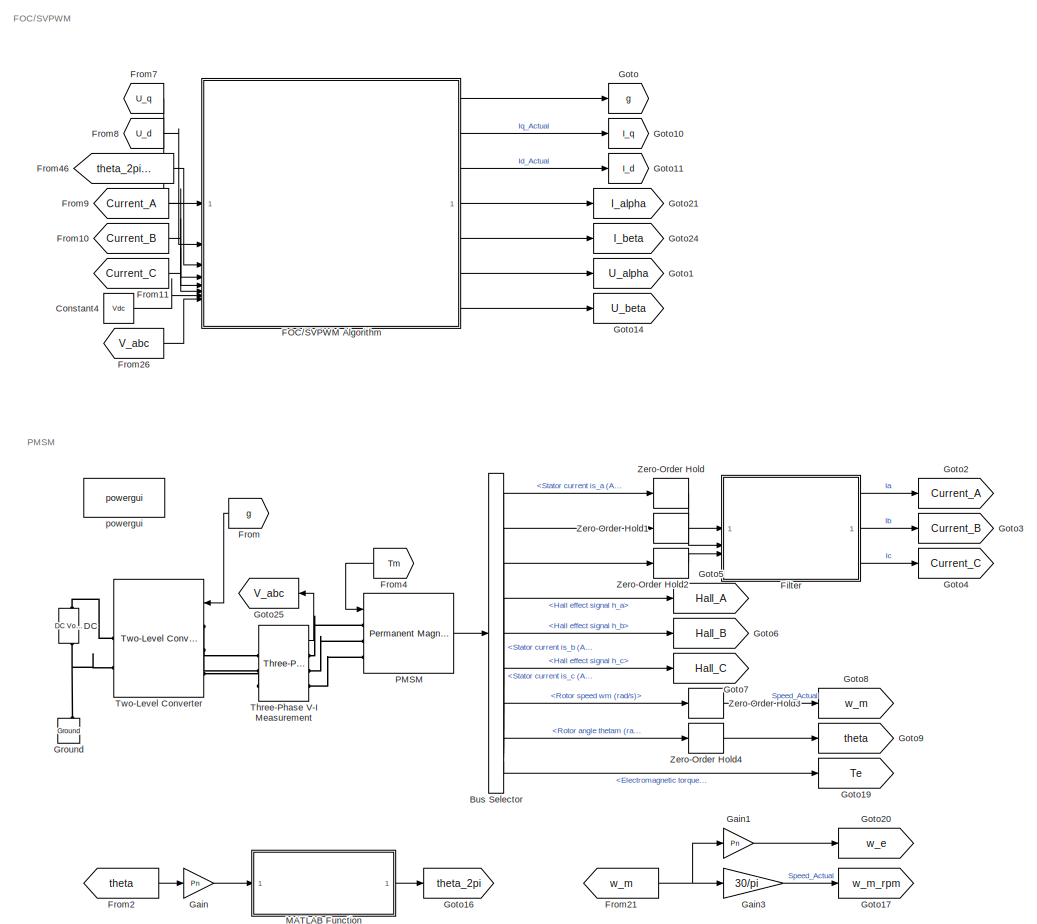
[diagram: root canvas - part 1/4, top right region]
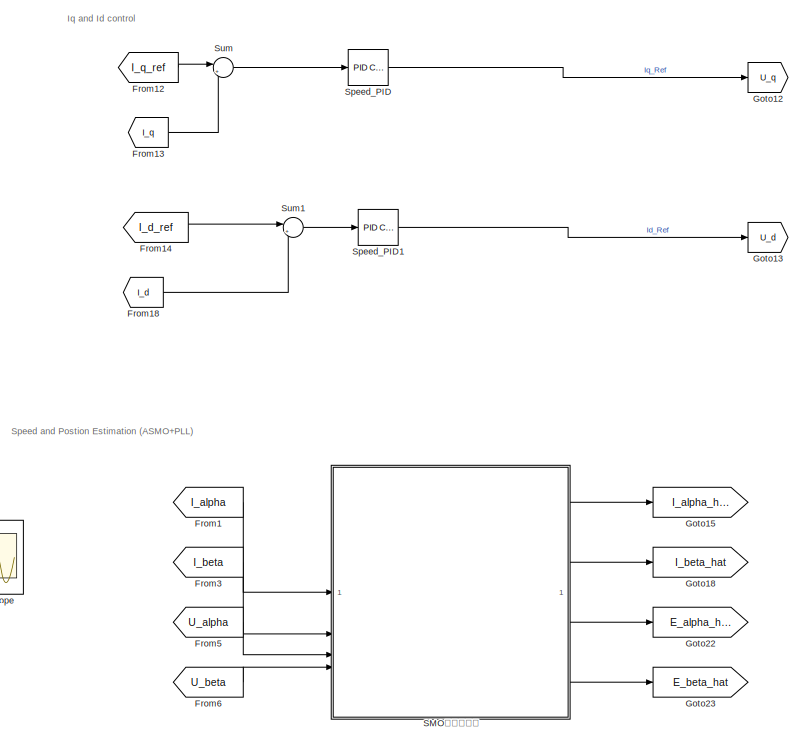
[diagram: root canvas - part 2/4, top center region]
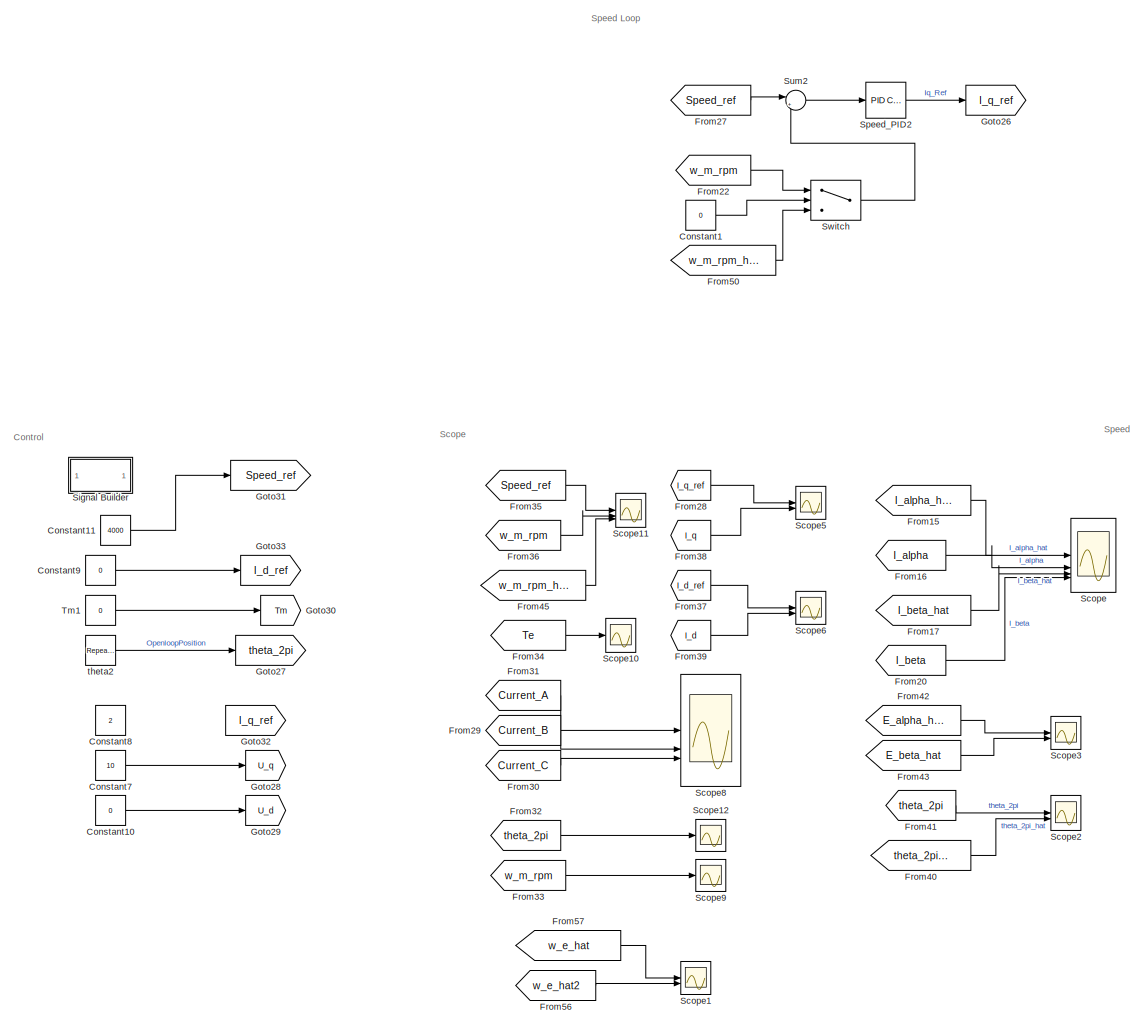
[diagram: root canvas - part 3/4, middle left region]
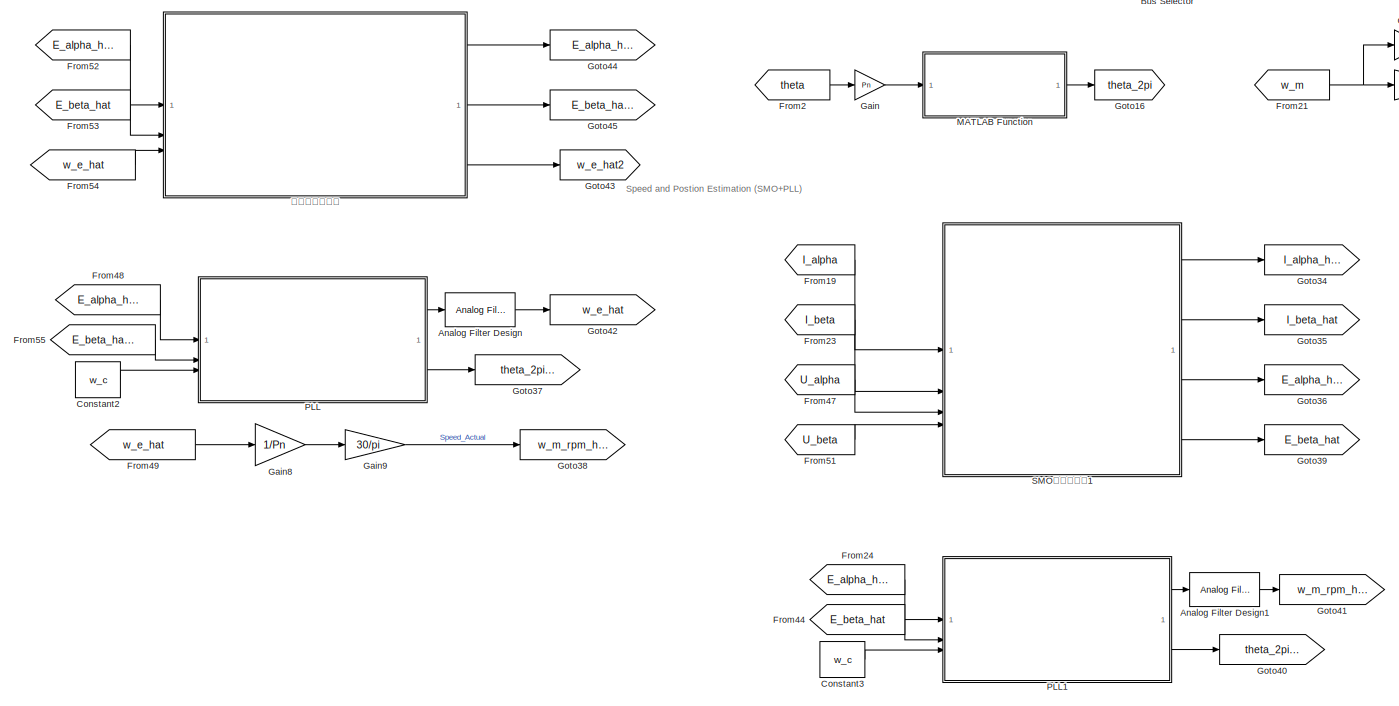
[diagram: root canvas - part 4/4, bottom center region]
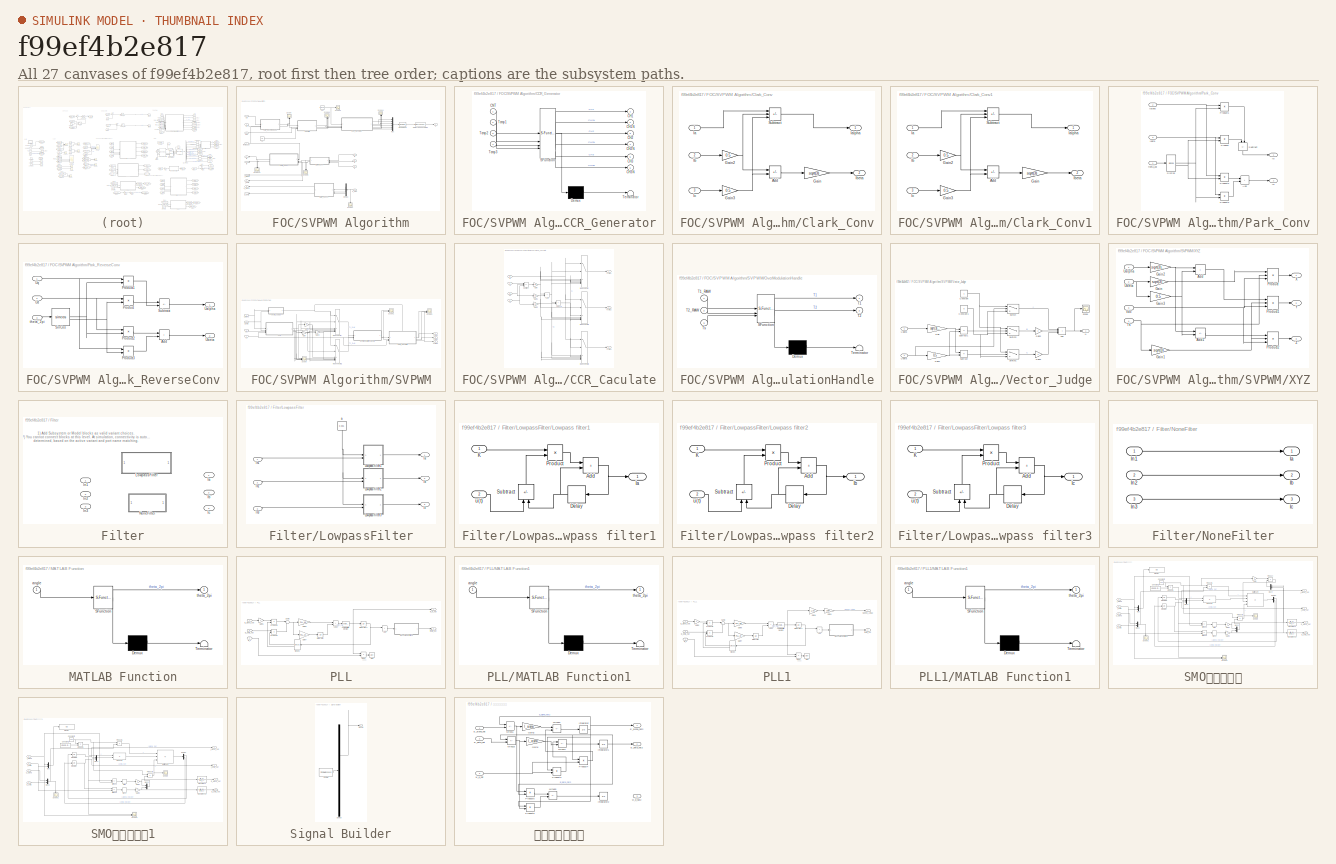
[diagram: thumbnail index - all 27 canvases of the model, root first then tree order]
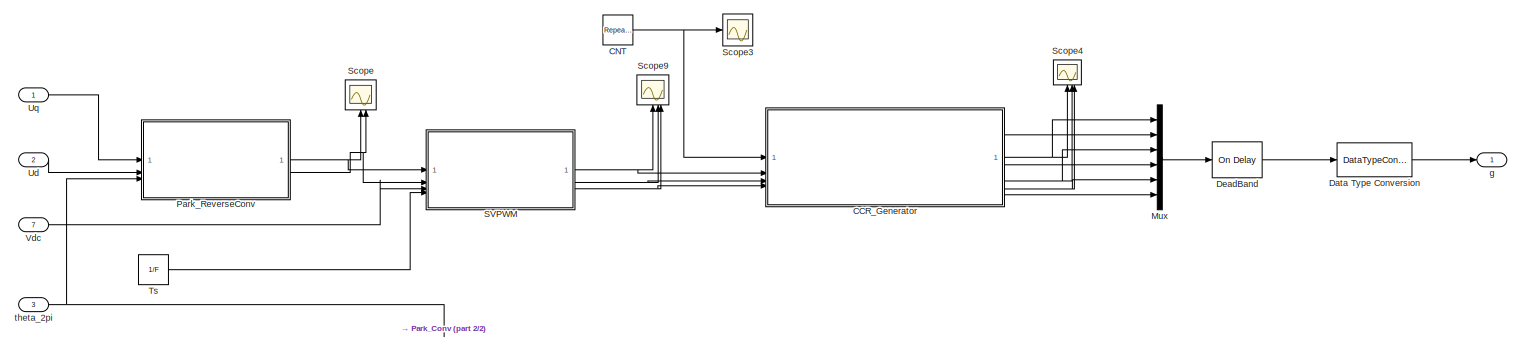
[diagram: FOC/SVPWM Algorithm - part 1/2, full width, top band]
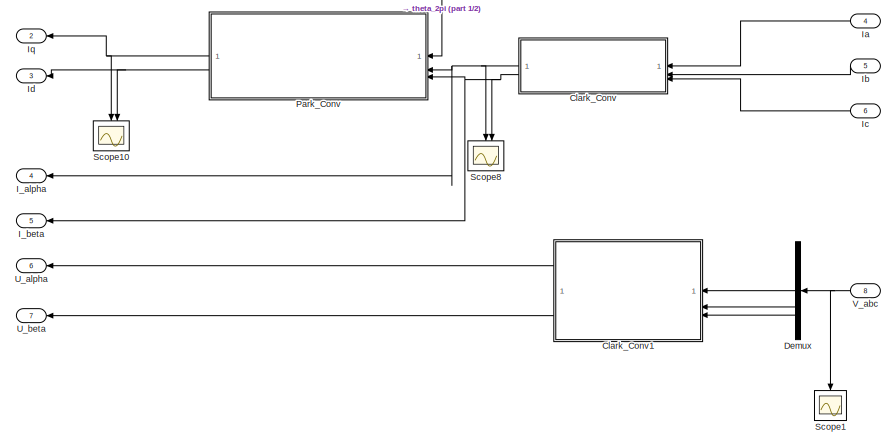
[diagram: FOC/SVPWM Algorithm - part 2/2, bottom left region]
MODEL slx_f99ef4b2e817
KIND model
CONFIG AbsTol = auto
CONFIG EnableMultiTasking = off
CONFIG FixedStep = 1e-6
CONFIG MaxStep = auto
CONFIG MinStep = auto
CONFIG RelTol = 1e-3
CONFIG SampleTimeConstraint = Unconstrained
CONFIG SolverName = FixedStepAuto
CONFIG StartTime = 0.0
CONFIG StopTime = 0.2
WORKSPACE source: mxarray member
WORKSPACE B = 0
WORKSPACE Current_Filter_On = 0
WORKSPACE F = 10000
WORKSPACE J = 5.8e-05
WORKSPACE Ls = 0.0005125
WORKSPACE PLL_Ki = 800
WORKSPACE PLL_Kp = 1000
WORKSPACE Pn = 5
WORKSPACE Rs = 0.1445
WORKSPACE T_deadband = 0
WORKSPACE Ts = 5e-05
WORKSPACE Vdc = 60
WORKSPACE id_ki = 5
WORKSPACE id_kp = 2.5
WORKSPACE iq_ki = 5
WORKSPACE iq_kp = 2.5
WORKSPACE k = 150
WORKSPACE l_asmo = 2000
WORKSPACE psi_f = 0.0113
WORKSPACE speed_ki = 5
WORKSPACE speed_kp = 0.2
WORKSPACE w_c = 8000
BLOCK [Reference] Analog Filter Design  REF=dspfdesign/Analog
Filter Design
  SourceBlock = dspfdesign/Analog\nFilter Design
  SourceType = Analog Filter Design
BLOCK [Reference] Analog Filter Design1  REF=dspfdesign/Analog
Filter Design
  Commented = on
  SourceBlock = dspfdesign/Analog\nFilter Design
  SourceType = Analog Filter Design
BLOCK [BusSelector] Bus Selector
  OutputSignals = Stator current is_a (A),Stator current is_b (A),Stator current is_c (A),Hall effect signal h_a,Hall effect signal h_b,Hall effect signal h_c,Rotor speed wm (rad/s),Rotor angle thetam (rad),Electromagnetic torque Te (N*m)
BLOCK [Constant] Constant1
  Value = 0
BLOCK [Constant] Constant10
  Commented = on
  Value = 0
BLOCK [Constant] Constant11
  Value = 4000
BLOCK [Constant] Constant2
  Value = w_c
BLOCK [Constant] Constant3
  Commented = on
  Value = w_c
BLOCK [Constant] Constant4
  Value = Vdc
BLOCK [Constant] Constant7
  Commented = on
  Value = 10
BLOCK [Constant] Constant8
  Commented = on
  Value = 2
BLOCK [Constant] Constant9
  Value = 0
BLOCK [Reference] DC  REF=spsDCVoltageSourceLib/DC Voltage Source
  NameLocation = left
  SourceBlock = spsDCVoltageSourceLib/DC Voltage Source
  SourceType = DC Voltage Source
BLOCK [SubSystem] FOC//SVPWM Algorithm
BLOCK [SubSystem] FOC//SVPWM Algorithm/CCR_Generator
  ErrorFcn = Stateflow.Translate.translate
  PermitHierarchicalResolution = ExplicitOnly
  SFBlockType = MATLAB Function
  TreatAsAtomicUnit = on
BLOCK [Demux] FOC//SVPWM Algorithm/CCR_Generator/ Demux 
  Outputs = 1
BLOCK [S-Function] FOC//SVPWM Algorithm/CCR_Generator/ SFunction 
  EnableBusSupport = on
  FunctionName = sf_sfun
  PortCounts = [4 7]
  SFcnIsStateOwnerBlock = off
  SFunctionDeploymentMode = off
  Tag = Stateflow S-Function 3
BLOCK [Terminator] FOC//SVPWM Algorithm/CCR_Generator/ Terminator 
BLOCK [Outport] FOC//SVPWM Algorithm/CCR_Generator/CH1
BLOCK [Outport] FOC//SVPWM Algorithm/CCR_Generator/CH1N
  Port = 2
BLOCK [Outport] FOC//SVPWM Algorithm/CCR_Generator/CH2
  Port = 3
BLOCK [Outport] FOC//SVPWM Algorithm/CCR_Generator/CH2N
  Port = 4
BLOCK [Outport] FOC//SVPWM Algorithm/CCR_Generator/CH3
  Port = 5
BLOCK [Outport] FOC//SVPWM Algorithm/CCR_Generator/CH3N
  Port = 6
BLOCK [Inport] FOC//SVPWM Algorithm/CCR_Generator/CNT
BLOCK [Inport] FOC//SVPWM Algorithm/CCR_Generator/Tcmp1
  Port = 2
BLOCK [Inport] FOC//SVPWM Algorithm/CCR_Generator/Tcmp2
  Port = 3
BLOCK [Inport] FOC//SVPWM Algorithm/CCR_Generator/Tcmp3
  Port = 4
BLOCK [Reference] FOC//SVPWM Algorithm/CNT  REF=simulink/Sources/Repeating
Sequence
  SourceBlock = simulink/Sources/Repeating\nSequence
  SourceType = Repeating table
BLOCK [SubSystem] FOC//SVPWM Algorithm/Clark_Conv
BLOCK [Sum] FOC//SVPWM Algorithm/Clark_Conv/Add
  IconShape = rectangular
  Inputs = +-
  OutDataTypeStr = double
BLOCK [Gain] FOC//SVPWM Algorithm/Clark_Conv/Gain
  Gain = sqrt(3)
  ParamDataTypeStr = double
BLOCK [Gain] FOC//SVPWM Algorithm/Clark_Conv/Gain2
  Gain = 0.5
BLOCK [Gain] FOC//SVPWM Algorithm/Clark_Conv/Gain3
  Gain = 0.5
BLOCK [Inport] FOC//SVPWM Algorithm/Clark_Conv/Ia
BLOCK [Outport] FOC//SVPWM Algorithm/Clark_Conv/Ialpha
BLOCK [Inport] FOC//SVPWM Algorithm/Clark_Conv/Ib
  Port = 2
BLOCK [Outport] FOC//SVPWM Algorithm/Clark_Conv/Ibeta
  Port = 2
BLOCK [Inport] FOC//SVPWM Algorithm/Clark_Conv/Ic
  Port = 3
BLOCK [Sum] FOC//SVPWM Algorithm/Clark_Conv/Subtract
  IconShape = rectangular
  Inputs = +--
  OutDataTypeStr = double
BLOCK [SubSystem] FOC//SVPWM Algorithm/Clark_Conv1
BLOCK [Sum] FOC//SVPWM Algorithm/Clark_Conv1/Add
  IconShape = rectangular
  Inputs = +-
  OutDataTypeStr = double
BLOCK [Gain] FOC//SVPWM Algorithm/Clark_Conv1/Gain
  Gain = sqrt(3)
  ParamDataTypeStr = double
BLOCK [Gain] FOC//SVPWM Algorithm/Clark_Conv1/Gain2
  Gain = 0.5
BLOCK [Gain] FOC//SVPWM Algorithm/Clark_Conv1/Gain3
  Gain = 0.5
BLOCK [Inport] FOC//SVPWM Algorithm/Clark_Conv1/Ia
BLOCK [Outport] FOC//SVPWM Algorithm/Clark_Conv1/Ialpha
BLOCK [Inport] FOC//SVPWM Algorithm/Clark_Conv1/Ib
  Port = 2
BLOCK [Outport] FOC//SVPWM Algorithm/Clark_Conv1/Ibeta
  Port = 2
BLOCK [Inport] FOC//SVPWM Algorithm/Clark_Conv1/Ic
  Port = 3
BLOCK [Sum] FOC//SVPWM Algorithm/Clark_Conv1/Subtract
  IconShape = rectangular
  Inputs = +--
  OutDataTypeStr = double
BLOCK [DataTypeConversion] FOC//SVPWM Algorithm/Data Type Conversion
  OutDataTypeStr = double
  RndMeth = Floor
  SaturateOnIntegerOverflow = off
BLOCK [Reference] FOC//SVPWM Algorithm/DeadBand  REF=spsOnDelayLib/On Delay
  LibrarySourceBlock = sps_lib/Control/On Delay
  SourceBlock = spsOnDelayLib/On Delay
  SourceType = On/Off Delay
BLOCK [Demux] FOC//SVPWM Algorithm/Demux
  Outputs = 3
BLOCK [Outport] FOC//SVPWM Algorithm/I_alpha
  Port = 4
BLOCK [Outport] FOC//SVPWM Algorithm/I_beta
  Port = 5
BLOCK [Inport] FOC//SVPWM Algorithm/Ia
  Port = 4
BLOCK [Inport] FOC//SVPWM Algorithm/Ib
  Port = 5
BLOCK [Inport] FOC//SVPWM Algorithm/Ic
  Port = 6
BLOCK [Outport] FOC//SVPWM Algorithm/Id
  Port = 3
BLOCK [Outport] FOC//SVPWM Algorithm/Iq
  Port = 2
BLOCK [Mux] FOC//SVPWM Algorithm/Mux
  DisplayOption = bar
  Inputs = 6
BLOCK [SubSystem] FOC//SVPWM Algorithm/Park_Conv
BLOCK [Sum] FOC//SVPWM Algorithm/Park_Conv/Add
  IconShape = rectangular
BLOCK [Inport] FOC//SVPWM Algorithm/Park_Conv/Ialpha
  Port = 2
BLOCK [Inport] FOC//SVPWM Algorithm/Park_Conv/Ibeta
  Port = 3
BLOCK [Outport] FOC//SVPWM Algorithm/Park_Conv/Id
  Port = 2
BLOCK [Outport] FOC//SVPWM Algorithm/Park_Conv/Iq
BLOCK [Product] FOC//SVPWM Algorithm/Park_Conv/Product
BLOCK [Product] FOC//SVPWM Algorithm/Park_Conv/Product1
BLOCK [Product] FOC//SVPWM Algorithm/Park_Conv/Product2
BLOCK [Product] FOC//SVPWM Algorithm/Park_Conv/Product3
BLOCK [Trigonometry] FOC//SVPWM Algorithm/Park_Conv/SinCos
  Operator = sincos
BLOCK [Sum] FOC//SVPWM Algorithm/Park_Conv/Subtract
  IconShape = rectangular
  Inputs = +-
  NameLocation = right
BLOCK [Inport] FOC//SVPWM Algorithm/Park_Conv/theta_2pi
BLOCK [SubSystem] FOC//SVPWM Algorithm/Park_ReverseConv
BLOCK [Sum] FOC//SVPWM Algorithm/Park_ReverseConv/Add
  IconShape = rectangular
BLOCK [Product] FOC//SVPWM Algorithm/Park_ReverseConv/Product
BLOCK [Product] FOC//SVPWM Algorithm/Park_ReverseConv/Product1
BLOCK [Product] FOC//SVPWM Algorithm/Park_ReverseConv/Product2
BLOCK [Product] FOC//SVPWM Algorithm/Park_ReverseConv/Product3
BLOCK [Trigonometry] FOC//SVPWM Algorithm/Park_ReverseConv/SinCos
  Operator = sincos
BLOCK [Sum] FOC//SVPWM Algorithm/Park_ReverseConv/Subtract
  IconShape = rectangular
  Inputs = +-
BLOCK [Outport] FOC//SVPWM Algorithm/Park_ReverseConv/Ualpha
BLOCK [Outport] FOC//SVPWM Algorithm/Park_ReverseConv/Ubeta
  Port = 2
BLOCK [Inport] FOC//SVPWM Algorithm/Park_ReverseConv/Ud
  Port = 2
BLOCK [Inport] FOC//SVPWM Algorithm/Park_ReverseConv/Uq
BLOCK [Inport] FOC//SVPWM Algorithm/Park_ReverseConv/theta_2pi
  Port = 3
BLOCK [SubSystem] FOC//SVPWM Algorithm/SVPWM
BLOCK [SubSystem] FOC//SVPWM Algorithm/SVPWM/CCR_Caculate
  PortSchema = {"entries":[{"content":{"sides":[{"content":{"connectorIds":["In1","In2","In3"]},"type":"ConnectorPlacement.EquallySpacedRectSide","uuid":"41d89106-695f-4d7e-9c99-c52170b99868"},{"content":{"connectorIds":["Out1","Out2","Out3"],"side":"RIGHT"},"type":"ConnectorPlacement.EquallySpacedRectSide","uuid":"0fa1e6b9-7088-4c16-9dd3-c016449aae3e"},{"content":{"connectorIds":["In4"],"side":"TOP"},"type":"Co...<+271ch>
BLOCK [Sum] FOC//SVPWM Algorithm/SVPWM/CCR_Caculate/Add
  IconShape = rectangular
BLOCK [Sum] FOC//SVPWM Algorithm/SVPWM/CCR_Caculate/Add1
  IconShape = rectangular
BLOCK [Gain] FOC//SVPWM Algorithm/SVPWM/CCR_Caculate/Gain
  Gain = 1/4
BLOCK [Gain] FOC//SVPWM Algorithm/SVPWM/CCR_Caculate/Gain1
  Gain = 1/2
BLOCK [Gain] FOC//SVPWM Algorithm/SVPWM/CCR_Caculate/Gain2
  Gain = 1/2
BLOCK [MultiPortSwitch] FOC//SVPWM Algorithm/SVPWM/CCR_Caculate/Index Vector
  DiagnosticForDefault = None
  InputSameDT = off
  Inputs = 6
  SaturateOnIntegerOverflow = off
BLOCK [MultiPortSwitch] FOC//SVPWM Algorithm/SVPWM/CCR_Caculate/Index Vector1
  DiagnosticForDefault = None
  InputSameDT = off
  Inputs = 6
  SaturateOnIntegerOverflow = off
BLOCK [MultiPortSwitch] FOC//SVPWM Algorithm/SVPWM/CCR_Caculate/Index Vector2
  DiagnosticForDefault = None
  InputSameDT = off
  Inputs = 6
  SaturateOnIntegerOverflow = off
BLOCK [Inport] FOC//SVPWM Algorithm/SVPWM/CCR_Caculate/N
  Port = 4
BLOCK [Sum] FOC//SVPWM Algorithm/SVPWM/CCR_Caculate/Subtract
  IconShape = rectangular
  Inputs = +--
BLOCK [Inport] FOC//SVPWM Algorithm/SVPWM/CCR_Caculate/T1
BLOCK [Inport] FOC//SVPWM Algorithm/SVPWM/CCR_Caculate/T2
  Port = 2
BLOCK [Outport] FOC//SVPWM Algorithm/SVPWM/CCR_Caculate/Tcmp1
BLOCK [Outport] FOC//SVPWM Algorithm/SVPWM/CCR_Caculate/Tcmp2
  Port = 2
BLOCK [Outport] FOC//SVPWM Algorithm/SVPWM/CCR_Caculate/Tcmp3
  Port = 3
BLOCK [Inport] FOC//SVPWM Algorithm/SVPWM/CCR_Caculate/Ts
  Port = 3
BLOCK [Gain] FOC//SVPWM Algorithm/SVPWM/Gain
  Gain = -1
BLOCK [Gain] FOC//SVPWM Algorithm/SVPWM/Gain1
  Gain = -1
BLOCK [Gain] FOC//SVPWM Algorithm/SVPWM/Gain2
  Gain = -1
BLOCK [MultiPortSwitch] FOC//SVPWM Algorithm/SVPWM/Index Vector
  DiagnosticForDefault = None
  InputSameDT = off
  Inputs = 6
  SaturateOnIntegerOverflow = off
BLOCK [MultiPortSwitch] FOC//SVPWM Algorithm/SVPWM/Index Vector1
  DiagnosticForDefault = None
  InputSameDT = off
  Inputs = 6
  SaturateOnIntegerOverflow = off
BLOCK [SubSystem] FOC//SVPWM Algorithm/SVPWM/OverModulationHandle
  ErrorFcn = Stateflow.Translate.translate
  PermitHierarchicalResolution = ExplicitOnly
  SFBlockType = MATLAB Function
  TreatAsAtomicUnit = on
BLOCK [Demux] FOC//SVPWM Algorithm/SVPWM/OverModulationHandle/ Demux 
  Outputs = 1
BLOCK [S-Function] FOC//SVPWM Algorithm/SVPWM/OverModulationHandle/ SFunction 
  EnableBusSupport = on
  FunctionName = sf_sfun
  PortCounts = [3 3]
  SFcnIsStateOwnerBlock = off
  SFunctionDeploymentMode = off
  Tag = Stateflow S-Function 4
BLOCK [Terminator] FOC//SVPWM Algorithm/SVPWM/OverModulationHandle/ Terminator 
BLOCK [Outport] FOC//SVPWM Algorithm/SVPWM/OverModulationHandle/T1
BLOCK [Inport] FOC//SVPWM Algorithm/SVPWM/OverModulationHandle/T1_RAW
BLOCK [Outport] FOC//SVPWM Algorithm/SVPWM/OverModulationHandle/T2
  Port = 2
BLOCK [Inport] FOC//SVPWM Algorithm/SVPWM/OverModulationHandle/T2_RAW
  Port = 2
BLOCK [Inport] FOC//SVPWM Algorithm/SVPWM/OverModulationHandle/Ts
  Port = 3
BLOCK [Scope] FOC//SVPWM Algorithm/SVPWM/Scope
  Floating = off
  NumInputPorts = 3
  ScopeSpecificationString = Simulink.scopes.TimeScopeBlockCfg('CurrentConfiguration', extmgr.ConfigurationSet(extmgr.Configuration('Core','General UI',true),extmgr.Configuration('Core','Source UI',true),extmgr.Configuration('Sources','WiredSimulink',true,'DataLoggingVariableName','ScopeData2'),extmgr.Configuration('Visuals','Time Domain',true,'SerializedDisplays',{struct('MinYLimReal','-10840.7399','MaxYLimReal','10882.04333...<+1438ch>
BLOCK [Scope] FOC//SVPWM Algorithm/SVPWM/Scope1
  Floating = off
  NumInputPorts = 2
  ScopeSpecificationString = Simulink.scopes.TimeScopeBlockCfg('CurrentConfiguration', extmgr.ConfigurationSet(extmgr.Configuration('Core','General UI',true),extmgr.Configuration('Core','Source UI',true),extmgr.Configuration('Sources','WiredSimulink',true,'DataLoggingVariableName','ScopeData3'),extmgr.Configuration('Visuals','Time Domain',true,'SerializedDisplays',{struct('MinYLimReal','-0.000004','MaxYLimReal','0.000035','YL...<+1453ch>
BLOCK [Scope] FOC//SVPWM Algorithm/SVPWM/Scope2
  Floating = off
  NumInputPorts = 3
  ScopeSpecificationString = Simulink.scopes.TimeScopeBlockCfg('CurrentConfiguration', extmgr.ConfigurationSet(extmgr.Configuration('Core','General UI',true),extmgr.Configuration('Core','Source UI',true),extmgr.Configuration('Sources','WiredSimulink',true,'DataLoggingVariableName','ScopeData4'),extmgr.Configuration('Visuals','Time Domain',true,'SerializedDisplays',{struct('MinYLimReal','0.000001','MaxYLimReal','0.000024','YLa...<+1473ch>
BLOCK [Outport] FOC//SVPWM Algorithm/SVPWM/Tcmp1
BLOCK [Outport] FOC//SVPWM Algorithm/SVPWM/Tcmp2
  Port = 2
BLOCK [Outport] FOC//SVPWM Algorithm/SVPWM/Tcmp3
  Port = 3
BLOCK [Inport] FOC//SVPWM Algorithm/SVPWM/Ts
  Port = 4
BLOCK [Inport] FOC//SVPWM Algorithm/SVPWM/Ualpha
BLOCK [Inport] FOC//SVPWM Algorithm/SVPWM/Ubeta
  Port = 2
BLOCK [Inport] FOC//SVPWM Algorithm/SVPWM/Vdc
  Port = 3
BLOCK [SubSystem] FOC//SVPWM Algorithm/SVPWM/Vector_Judge
BLOCK [Sum] FOC//SVPWM Algorithm/SVPWM/Vector_Judge/Add
  IconShape = rectangular
  Inputs = +++
BLOCK [Constant] FOC//SVPWM Algorithm/SVPWM/Vector_Judge/Constant
BLOCK [Constant] FOC//SVPWM Algorithm/SVPWM/Vector_Judge/Constant1
  Value = 0
BLOCK [Gain] FOC//SVPWM Algorithm/SVPWM/Vector_Judge/Gain
  Gain = sqrt(3)/2
BLOCK [Gain] FOC//SVPWM Algorithm/SVPWM/Vector_Judge/Gain1
  Gain = 0.5
BLOCK [Gain] FOC//SVPWM Algorithm/SVPWM/Vector_Judge/Gain2
  Gain = 2
BLOCK [Gain] FOC//SVPWM Algorithm/SVPWM/Vector_Judge/Gain3
  Gain = 4
BLOCK [Outport] FOC//SVPWM Algorithm/SVPWM/Vector_Judge/N
BLOCK [Scope] FOC//SVPWM Algorithm/SVPWM/Vector_Judge/Scope
  Floating = off
  NumInputPorts = 1
  ScopeSpecificationString = Simulink.scopes.TimeScopeBlockCfg('CurrentConfiguration', extmgr.ConfigurationSet(extmgr.Configuration('Core','General UI',true),extmgr.Configuration('Core','Source UI',true),extmgr.Configuration('Sources','WiredSimulink',true,'DataLoggingVariableName','ScopeData1'),extmgr.Configuration('Visuals','Time Domain',true,'SerializedDisplays',{struct('MinYLimReal','0.375','MaxYLimReal','6.625','YLabelRea...<+1426ch>
BLOCK [Sum] FOC//SVPWM Algorithm/SVPWM/Vector_Judge/Subtract
  IconShape = rectangular
  Inputs = --
BLOCK [Sum] FOC//SVPWM Algorithm/SVPWM/Vector_Judge/Subtract1
  IconShape = rectangular
  Inputs = +-
BLOCK [Switch] FOC//SVPWM Algorithm/SVPWM/Vector_Judge/Switch
  Criteria = u2 > Threshold
  InputSameDT = off
  SaturateOnIntegerOverflow = off
BLOCK [Switch] FOC//SVPWM Algorithm/SVPWM/Vector_Judge/Switch1
  Criteria = u2 > Threshold
  InputSameDT = off
  SaturateOnIntegerOverflow = off
BLOCK [Switch] FOC//SVPWM Algorithm/SVPWM/Vector_Judge/Switch2
  Criteria = u2 > Threshold
  InputSameDT = off
  SaturateOnIntegerOverflow = off
BLOCK [Inport] FOC//SVPWM Algorithm/SVPWM/Vector_Judge/Ualpha
BLOCK [Inport] FOC//SVPWM Algorithm/SVPWM/Vector_Judge/Ubeta
  Port = 2
BLOCK [SubSystem] FOC//SVPWM Algorithm/SVPWM/XYZ
BLOCK [Sum] FOC//SVPWM Algorithm/SVPWM/XYZ/Add
  IconShape = rectangular
BLOCK [Sum] FOC//SVPWM Algorithm/SVPWM/XYZ/Add1
  IconShape = rectangular
  Inputs = -+
BLOCK [Gain] FOC//SVPWM Algorithm/SVPWM/XYZ/Gain
  Gain = sqrt(3)
BLOCK [Gain] FOC//SVPWM Algorithm/SVPWM/XYZ/Gain1
  Gain = sqrt(3)
BLOCK [Gain] FOC//SVPWM Algorithm/SVPWM/XYZ/Gain2
  Gain = sqrt(3)/2
BLOCK [Gain] FOC//SVPWM Algorithm/SVPWM/XYZ/Gain3
  Gain = 0.5
BLOCK [Product] FOC//SVPWM Algorithm/SVPWM/XYZ/Product
  Inputs = **/
BLOCK [Product] FOC//SVPWM Algorithm/SVPWM/XYZ/Product1
  Inputs = **/
BLOCK [Product] FOC//SVPWM Algorithm/SVPWM/XYZ/Product2
  Inputs = **/
BLOCK [Inport] FOC//SVPWM Algorithm/SVPWM/XYZ/Ts
  Port = 4
BLOCK [Inport] FOC//SVPWM Algorithm/SVPWM/XYZ/Ualpha
BLOCK [Inport] FOC//SVPWM Algorithm/SVPWM/XYZ/Ubeta
  Port = 2
BLOCK [Inport] FOC//SVPWM Algorithm/SVPWM/XYZ/Vdc
  Port = 3
BLOCK [Outport] FOC//SVPWM Algorithm/SVPWM/XYZ/X
BLOCK [Outport] FOC//SVPWM Algorithm/SVPWM/XYZ/Y
  Port = 2
BLOCK [Outport] FOC//SVPWM Algorithm/SVPWM/XYZ/Z
  Port = 3
BLOCK [Scope] FOC//SVPWM Algorithm/Scope
  Floating = off
  NameLocation = right
  NumInputPorts = 2
  ScopeSpecificationString = Simulink.scopes.TimeScopeBlockCfg('CurrentConfiguration', extmgr.ConfigurationSet(extmgr.Configuration('Core','General UI',true,'FigureColor',[1 1 1]),extmgr.Configuration('Core','Source UI',true),extmgr.Configuration('Sources','WiredSimulink',true),extmgr.Configuration('Visuals','Time Domain',true,'SerializedDisplays',{struct('MinYLimReal','-26.02261','MaxYLimReal','26.01134','YLabelReal','电压(V)'...<+1729ch>
BLOCK [Scope] FOC//SVPWM Algorithm/Scope1
  Floating = off
  NameLocation = left
  NumInputPorts = 1
  ScopeSpecificationString = Simulink.scopes.TimeScopeBlockCfg('CurrentConfiguration', extmgr.ConfigurationSet(extmgr.Configuration('Core','General UI',true),extmgr.Configuration('Core','Source UI',true),extmgr.Configuration('Sources','WiredSimulink',true,'DataLoggingVariableName','ScopeData1'),extmgr.Configuration('Visuals','Time Domain',true,'SerializedDisplays',{struct('MinYLimReal','-7.54187','MaxYLimReal','67.53307','YLa...<+1530ch>
BLOCK [Scope] FOC//SVPWM Algorithm/Scope10
  Floating = off
  NameLocation = right
  NumInputPorts = 2
  ScopeSpecificationString = Simulink.scopes.TimeScopeBlockCfg('CurrentConfiguration', extmgr.ConfigurationSet(extmgr.Configuration('Core','General UI',true,'FigureColor',[1 1 1]),extmgr.Configuration('Core','Source UI',true),extmgr.Configuration('Sources','WiredSimulink',true,'DataLoggingVariableName','ScopeData1'),extmgr.Configuration('Visuals','Time Domain',true,'SerializedDisplays',{struct('MinYLimReal','-29.55639','MaxYL...<+1678ch>
BLOCK [Scope] FOC//SVPWM Algorithm/Scope3
  Floating = off
  NumInputPorts = 1
  ScopeSpecificationString = Simulink.scopes.TimeScopeBlockCfg('CurrentConfiguration', extmgr.ConfigurationSet(extmgr.Configuration('Core','General UI',true),extmgr.Configuration('Core','Source UI',true),extmgr.Configuration('Sources','WiredSimulink',true,'DataLoggingVariableName','ScopeData1'),extmgr.Configuration('Visuals','Time Domain',true,'SerializedDisplays',{struct('MinYLimReal','-0.000003','MaxYLimReal','0.000028','YL...<+1469ch>
BLOCK [Scope] FOC//SVPWM Algorithm/Scope4
  Floating = off
  NameLocation = right
  NumInputPorts = 3
  ScopeSpecificationString = Simulink.scopes.TimeScopeBlockCfg('CurrentConfiguration', extmgr.ConfigurationSet(extmgr.Configuration('Core','General UI',true,'FigureColor',[1 1 1]),extmgr.Configuration('Core','Source UI',true),extmgr.Configuration('Sources','WiredSimulink',true,'DataLoggingVariableName','ScopeData2'),extmgr.Configuration('Visuals','Time Domain',true,'SerializedDisplays',{struct('MinYLimReal','-0.125','MaxYLimR...<+3284ch>
BLOCK [Scope] FOC//SVPWM Algorithm/Scope8
  Floating = off
  NameLocation = right
  NumInputPorts = 2
  ScopeSpecificationString = Simulink.scopes.TimeScopeBlockCfg('CurrentConfiguration', extmgr.ConfigurationSet(extmgr.Configuration('Core','General UI',true,'FigureColor',[1 1 1]),extmgr.Configuration('Core','Source UI',true),extmgr.Configuration('Sources','WiredSimulink',true,'DataLoggingVariableName','ScopeData7'),extmgr.Configuration('Visuals','Time Domain',true,'SerializedDisplays',{struct('MinYLimReal','-39.23588','MaxYL...<+1792ch>
BLOCK [Scope] FOC//SVPWM Algorithm/Scope9
  Floating = off
  NameLocation = right
  NumInputPorts = 3
  ScopeSpecificationString = Simulink.scopes.TimeScopeBlockCfg('CurrentConfiguration', extmgr.ConfigurationSet(extmgr.Configuration('Core','General UI',true,'FigureColor',[1 1 1]),extmgr.Configuration('Core','Source UI',true),extmgr.Configuration('Sources','WiredSimulink',true,'DataLoggingVariableName','ScopeData1'),extmgr.Configuration('Visuals','Time Domain',true,'SerializedDisplays',{struct('MinYLimReal','0.000003','MaxYLi...<+1787ch>
BLOCK [Constant] FOC//SVPWM Algorithm/Ts
  Value = 1/F
BLOCK [Outport] FOC//SVPWM Algorithm/U_alpha
  Port = 6
BLOCK [Outport] FOC//SVPWM Algorithm/U_beta
  Port = 7
BLOCK [Inport] FOC//SVPWM Algorithm/Ud
  Port = 2
BLOCK [Inport] FOC//SVPWM Algorithm/Uq
BLOCK [Inport] FOC//SVPWM Algorithm/V_abc
  Port = 8
BLOCK [Inport] FOC//SVPWM Algorithm/Vdc
  Port = 7
BLOCK [Outport] FOC//SVPWM Algorithm/g
BLOCK [Inport] FOC//SVPWM Algorithm/theta_2pi
  Port = 3
BLOCK [SubSystem] Filter
  Variant = on
BLOCK [Outport] Filter/Ia
BLOCK [Outport] Filter/Ib
  Port = 2
BLOCK [Outport] Filter/Ic
  Port = 3
BLOCK [SubSystem] Filter/LowpassFilter
  VariantControl = Current_Filter_On==1
BLOCK [Outport] Filter/LowpassFilter/Ia
BLOCK [Outport] Filter/LowpassFilter/Ib
  Port = 2
BLOCK [Outport] Filter/LowpassFilter/Ic
  Port = 3
BLOCK [SubSystem] Filter/LowpassFilter/Lowpass filter1
BLOCK [Sum] Filter/LowpassFilter/Lowpass filter1/Add
  IconShape = rectangular
BLOCK [Delay] Filter/LowpassFilter/Lowpass filter1/Delay
  DelayLength = 1
  InputPortMap = u0
BLOCK [Outport] Filter/LowpassFilter/Lowpass filter1/Ia
BLOCK [Inport] Filter/LowpassFilter/Lowpass filter1/K
BLOCK [Product] Filter/LowpassFilter/Lowpass filter1/Product
BLOCK [Sum] Filter/LowpassFilter/Lowpass filter1/Subtract
  IconShape = rectangular
  Inputs = +-
  NameLocation = left
BLOCK [Inport] Filter/LowpassFilter/Lowpass filter1/u(t)
  Port = 2
BLOCK [SubSystem] Filter/LowpassFilter/Lowpass filter2
BLOCK [Sum] Filter/LowpassFilter/Lowpass filter2/Add
  IconShape = rectangular
BLOCK [Delay] Filter/LowpassFilter/Lowpass filter2/Delay
  DelayLength = 1
  InputPortMap = u0
BLOCK [Outport] Filter/LowpassFilter/Lowpass filter2/Ib
BLOCK [Inport] Filter/LowpassFilter/Lowpass filter2/K
BLOCK [Product] Filter/LowpassFilter/Lowpass filter2/Product
BLOCK [Sum] Filter/LowpassFilter/Lowpass filter2/Subtract
  IconShape = rectangular
  Inputs = +-
  NameLocation = left
BLOCK [Inport] Filter/LowpassFilter/Lowpass filter2/u(t)
  Port = 2
BLOCK [SubSystem] Filter/LowpassFilter/Lowpass filter3
BLOCK [Sum] Filter/LowpassFilter/Lowpass filter3/Add
  IconShape = rectangular
BLOCK [Delay] Filter/LowpassFilter/Lowpass filter3/Delay
  DelayLength = 1
  InputPortMap = u0
BLOCK [Outport] Filter/LowpassFilter/Lowpass filter3/Ic
BLOCK [Inport] Filter/LowpassFilter/Lowpass filter3/K
BLOCK [Product] Filter/LowpassFilter/Lowpass filter3/Product
BLOCK [Sum] Filter/LowpassFilter/Lowpass filter3/Subtract
  IconShape = rectangular
  Inputs = +-
  NameLocation = left
BLOCK [Inport] Filter/LowpassFilter/Lowpass filter3/u(t)
  Port = 2
BLOCK [Constant] Filter/LowpassFilter/a
  NameLocation = left
  Value = 0.001
BLOCK [Inport] Filter/LowpassFilter/ln1
BLOCK [Inport] Filter/LowpassFilter/ln2
  Port = 2
BLOCK [Inport] Filter/LowpassFilter/ln3
  Port = 3
BLOCK [SubSystem] Filter/NoneFilter
  VariantControl = Current_Filter_On==0
BLOCK [Outport] Filter/NoneFilter/Ia
BLOCK [Outport] Filter/NoneFilter/Ib
  Port = 2
BLOCK [Outport] Filter/NoneFilter/Ic
  Port = 3
BLOCK [Inport] Filter/NoneFilter/ln1
BLOCK [Inport] Filter/NoneFilter/ln2
  Port = 2
BLOCK [Inport] Filter/NoneFilter/ln3
  Port = 3
BLOCK [Inport] Filter/ln1
BLOCK [Inport] Filter/ln2
  Port = 2
BLOCK [Inport] Filter/ln3
  Port = 3
BLOCK [From] From
  GotoTag = g
  NameLocation = top
BLOCK [From] From1
  GotoTag = I_alpha
BLOCK [From] From10
  GotoTag = Current_B
BLOCK [From] From11
  GotoTag = Current_C
BLOCK [From] From12
  GotoTag = I_q_ref
BLOCK [From] From13
  GotoTag = I_q
BLOCK [From] From14
  GotoTag = I_d_ref
BLOCK [From] From15
  GotoTag = I_alpha_hat
BLOCK [From] From16
  GotoTag = I_alpha
BLOCK [From] From17
  GotoTag = I_beta_hat
BLOCK [From] From18
  GotoTag = I_d
BLOCK [From] From19
  Commented = on
  GotoTag = I_alpha
BLOCK [From] From2
  GotoTag = theta
BLOCK [From] From20
  GotoTag = I_beta
BLOCK [From] From21
  GotoTag = w_m
BLOCK [From] From22
  GotoTag = w_m_rpm
BLOCK [From] From23
  Commented = on
  GotoTag = I_beta
BLOCK [From] From24
  Commented = on
  GotoTag = E_alpha_hat
BLOCK [From] From26
  GotoTag = V_abc
BLOCK [From] From27
  GotoTag = Speed_ref
BLOCK [From] From28
  GotoTag = I_q_ref
BLOCK [From] From29
  GotoTag = Current_B
BLOCK [From] From3
  GotoTag = I_beta
BLOCK [From] From30
  GotoTag = Current_C
BLOCK [From] From31
  GotoTag = Current_A
BLOCK [From] From32
  GotoTag = theta_2pi
BLOCK [From] From33
  GotoTag = w_m_rpm
BLOCK [From] From34
  GotoTag = Te
BLOCK [From] From35
  GotoTag = Speed_ref
BLOCK [From] From36
  GotoTag = w_m_rpm
BLOCK [From] From37
  GotoTag = I_d_ref
BLOCK [From] From38
  GotoTag = I_q
BLOCK [From] From39
  GotoTag = I_d
BLOCK [From] From4
  GotoTag = Tm
BLOCK [From] From40
  GotoTag = theta_2pi_hat
BLOCK [From] From41
  GotoTag = theta_2pi
BLOCK [From] From42
  GotoTag = E_alpha_hat
BLOCK [From] From43
  GotoTag = E_beta_hat
BLOCK [From] From44
  Commented = on
  GotoTag = E_beta_hat
BLOCK [From] From45
  GotoTag = w_m_rpm_hat
BLOCK [From] From46
  GotoTag = theta_2pi_hat
BLOCK [From] From47
  Commented = on
  GotoTag = U_alpha
BLOCK [From] From48
  GotoTag = E_alpha_hat2
BLOCK [From] From49
  GotoTag = w_e_hat
BLOCK [From] From5
  GotoTag = U_alpha
BLOCK [From] From50
  GotoTag = w_m_rpm_hat
BLOCK [From] From51
  Commented = on
  GotoTag = U_beta
BLOCK [From] From52
  GotoTag = E_alpha_hat
BLOCK [From] From53
  GotoTag = E_beta_hat
BLOCK [From] From54
  GotoTag = w_e_hat
BLOCK [From] From55
  GotoTag = E_beta_hat2
BLOCK [From] From56
  GotoTag = w_e_hat2
BLOCK [From] From57
  GotoTag = w_e_hat
BLOCK [From] From6
  GotoTag = U_beta
BLOCK [From] From7
  GotoTag = U_q
BLOCK [From] From8
  GotoTag = U_d
BLOCK [From] From9
  GotoTag = Current_A
BLOCK [Gain] Gain
  Gain = Pn
BLOCK [Gain] Gain1
  Gain = Pn
BLOCK [Gain] Gain3
  Gain = 30/pi
  NameLocation = top
BLOCK [Gain] Gain8
  Gain = 1/Pn
BLOCK [Gain] Gain9
  Gain = 30/pi
  NameLocation = top
BLOCK [Goto] Goto
  GotoTag = g
BLOCK [Goto] Goto1
  GotoTag = U_alpha
BLOCK [Goto] Goto10
  GotoTag = I_q
BLOCK [Goto] Goto11
  GotoTag = I_d
BLOCK [Goto] Goto12
  GotoTag = U_q
BLOCK [Goto] Goto13
  GotoTag = U_d
BLOCK [Goto] Goto14
  GotoTag = U_beta
BLOCK [Goto] Goto15
  GotoTag = I_alpha_hat
BLOCK [Goto] Goto16
  GotoTag = theta_2pi
BLOCK [Goto] Goto17
  GotoTag = w_m_rpm
BLOCK [Goto] Goto18
  GotoTag = I_beta_hat
BLOCK [Goto] Goto19
  GotoTag = Te
BLOCK [Goto] Goto2
  GotoTag = Current_A
BLOCK [Goto] Goto20
  GotoTag = w_e
BLOCK [Goto] Goto21
  GotoTag = I_alpha
BLOCK [Goto] Goto22
  GotoTag = E_alpha_hat
BLOCK [Goto] Goto23
  GotoTag = E_beta_hat
BLOCK [Goto] Goto24
  GotoTag = I_beta
BLOCK [Goto] Goto25
  GotoTag = V_abc
BLOCK [Goto] Goto26
  GotoTag = I_q_ref
BLOCK [Goto] Goto27
  Commented = on
  GotoTag = theta_2pi
BLOCK [Goto] Goto28
  Commented = on
  GotoTag = U_q
BLOCK [Goto] Goto29
  Commented = on
  GotoTag = U_d
BLOCK [Goto] Goto3
  GotoTag = Current_B
BLOCK [Goto] Goto30
  GotoTag = Tm
BLOCK [Goto] Goto31
  GotoTag = Speed_ref
BLOCK [Goto] Goto32
  Commented = on
  GotoTag = I_q_ref
BLOCK [Goto] Goto33
  GotoTag = I_d_ref
BLOCK [Goto] Goto34
  Commented = on
  GotoTag = I_alpha_hat
BLOCK [Goto] Goto35
  Commented = on
  GotoTag = I_beta_hat
BLOCK [Goto] Goto36
  Commented = on
  GotoTag = E_alpha_hat
BLOCK [Goto] Goto37
  GotoTag = theta_2pi_hat
BLOCK [Goto] Goto38
  GotoTag = w_m_rpm_hat
BLOCK [Goto] Goto39
  Commented = on
  GotoTag = E_beta_hat
BLOCK [Goto] Goto4
  GotoTag = Current_C
BLOCK [Goto] Goto40
  Commented = on
  GotoTag = theta_2pi_hat
BLOCK [Goto] Goto41
  Commented = on
  GotoTag = w_m_rpm_hat
BLOCK [Goto] Goto42
  GotoTag = w_e_hat
BLOCK [Goto] Goto43
  GotoTag = w_e_hat2
BLOCK [Goto] Goto44
  GotoTag = E_alpha_hat2
BLOCK [Goto] Goto45
  GotoTag = E_beta_hat2
BLOCK [Goto] Goto5
  GotoTag = Hall_A
BLOCK [Goto] Goto6
  GotoTag = Hall_B
BLOCK [Goto] Goto7
  GotoTag = Hall_C
BLOCK [Goto] Goto8
  GotoTag = w_m
BLOCK [Goto] Goto9
  GotoTag = theta
BLOCK [Reference] Ground  REF=spsGroundLib/Ground
  LibrarySourceBlock = sps_lib/Utilities/Ground
  NameLocation = right
  SourceBlock = spsGroundLib/Ground
  SourceType = Ground
BLOCK [SubSystem] MATLAB Function
  ErrorFcn = Stateflow.Translate.translate
  NameLocation = top
  PermitHierarchicalResolution = ExplicitOnly
  SFBlockType = MATLAB Function
  TreatAsAtomicUnit = on
BLOCK [Demux] MATLAB Function/ Demux 
  Outputs = 1
BLOCK [S-Function] MATLAB Function/ SFunction 
  EnableBusSupport = on
  FunctionName = sf_sfun
  PortCounts = [1 2]
  SFcnIsStateOwnerBlock = off
  SFunctionDeploymentMode = off
  Tag = Stateflow S-Function 1
BLOCK [Terminator] MATLAB Function/ Terminator 
BLOCK [Inport] MATLAB Function/angle
BLOCK [Outport] MATLAB Function/theta_2pi
BLOCK [SubSystem] PLL
BLOCK [Sum] PLL/Add
  IconShape = rectangular
BLOCK [Sum] PLL/Add2
  IconShape = rectangular
BLOCK [Reference] PLL/Analog Filter Design  REF=dspfdesign/Analog
Filter Design
  Commented = through
  SourceBlock = dspfdesign/Analog\nFilter Design
  SourceType = Analog Filter Design
BLOCK [Trigonometry] PLL/Atan
  Operator = atan
BLOCK [Product] PLL/Divide
  Inputs = */
BLOCK [Inport] PLL/E_alpha_hat
BLOCK [Inport] PLL/E_beta_hat
  Port = 2
BLOCK [Gain] PLL/Gain5
  Gain = -1
BLOCK [Gain] PLL/Gain6
  Gain = PLL_Kp
BLOCK [Gain] PLL/Gain7
  Gain = PLL_Ki
BLOCK [Integrator] PLL/Integrator
BLOCK [Integrator] PLL/Integrator1
BLOCK [SubSystem] PLL/MATLAB Function1
  ErrorFcn = Stateflow.Translate.translate
  NameLocation = top
  PermitHierarchicalResolution = ExplicitOnly
  SFBlockType = MATLAB Function
  TreatAsAtomicUnit = on
BLOCK [Demux] PLL/MATLAB Function1/ Demux 
  Outputs = 1
BLOCK [S-Function] PLL/MATLAB Function1/ SFunction 
  EnableBusSupport = on
  FunctionName = sf_sfun
  PortCounts = [1 2]
  SFcnIsStateOwnerBlock = off
  SFunctionDeploymentMode = off
  Tag = Stateflow S-Function 5
BLOCK [Terminator] PLL/MATLAB Function1/ Terminator 
BLOCK [Inport] PLL/MATLAB Function1/angle
BLOCK [Outport] PLL/MATLAB Function1/theta_2pi
BLOCK [Product] PLL/Product3
BLOCK [Product] PLL/Product4
BLOCK [Trigonometry] PLL/SinCos
  Operator = sincos
BLOCK [Sum] PLL/Sum3
  Inputs = |+-
BLOCK [Outport] PLL/theta_2pi
  Port = 2
BLOCK [Inport] PLL/w_c
  Port = 3
BLOCK [Outport] PLL/w_e_hat
BLOCK [SubSystem] PLL1
  Commented = on
BLOCK [Sum] PLL1/Add
  IconShape = rectangular
BLOCK [Sum] PLL1/Add2
  IconShape = rectangular
BLOCK [Reference] PLL1/Analog Filter Design  REF=dsparch4/Analog
Filter Design
  Commented = through
  SourceBlock = dsparch4/Analog\nFilter Design
  SourceType = Analog Filter Design
BLOCK [Trigonometry] PLL1/Atan
  Operator = atan
BLOCK [Product] PLL1/Divide
  Inputs = */
BLOCK [Inport] PLL1/E_alpha_hat
BLOCK [Inport] PLL1/E_beta_hat
  Port = 2
BLOCK [Gain] PLL1/Gain5
  Gain = -1
BLOCK [Gain] PLL1/Gain6
  Gain = PLL_Kp
BLOCK [Gain] PLL1/Gain7
  Gain = PLL_Ki
BLOCK [Gain] PLL1/Gain8
  Gain = 1/Pn
BLOCK [Gain] PLL1/Gain9
  Gain = 30/pi
  NameLocation = top
BLOCK [Integrator] PLL1/Integrator
BLOCK [Integrator] PLL1/Integrator1
BLOCK [SubSystem] PLL1/MATLAB Function1
  ErrorFcn = Stateflow.Translate.translate
  NameLocation = top
  PermitHierarchicalResolution = ExplicitOnly
  SFBlockType = MATLAB Function
  TreatAsAtomicUnit = on
BLOCK [Demux] PLL1/MATLAB Function1/ Demux 
  Outputs = 1
BLOCK [S-Function] PLL1/MATLAB Function1/ SFunction 
  EnableBusSupport = off
  FunctionName = sf_sfun
  PortCounts = [1 2]
  SFcnIsStateOwnerBlock = off
  SFunctionDeploymentMode = off
  Tag = Stateflow S-Function 2
BLOCK [Terminator] PLL1/MATLAB Function1/ Terminator 
BLOCK [Inport] PLL1/MATLAB Function1/angle
BLOCK [Outport] PLL1/MATLAB Function1/theta_2pi
BLOCK [Product] PLL1/Product3
BLOCK [Product] PLL1/Product4
BLOCK [Trigonometry] PLL1/SinCos
  Operator = sincos
BLOCK [Outport] PLL1/Speed_Actual
BLOCK [Sum] PLL1/Sum3
  Inputs = |+-
BLOCK [Outport] PLL1/theta_2pi
  Port = 2
BLOCK [Inport] PLL1/w_c
  Port = 3
BLOCK [Reference] PMSM  REF=spsPermanentMagnetSynchronousMachineLib/Permanent Magnet
Synchronous Machine
  SourceBlock = spsPermanentMagnetSynchronousMachineLib/Permanent Magnet\nSynchronous Machine
  SourceType = Permanent Magnet Synchronous Machine
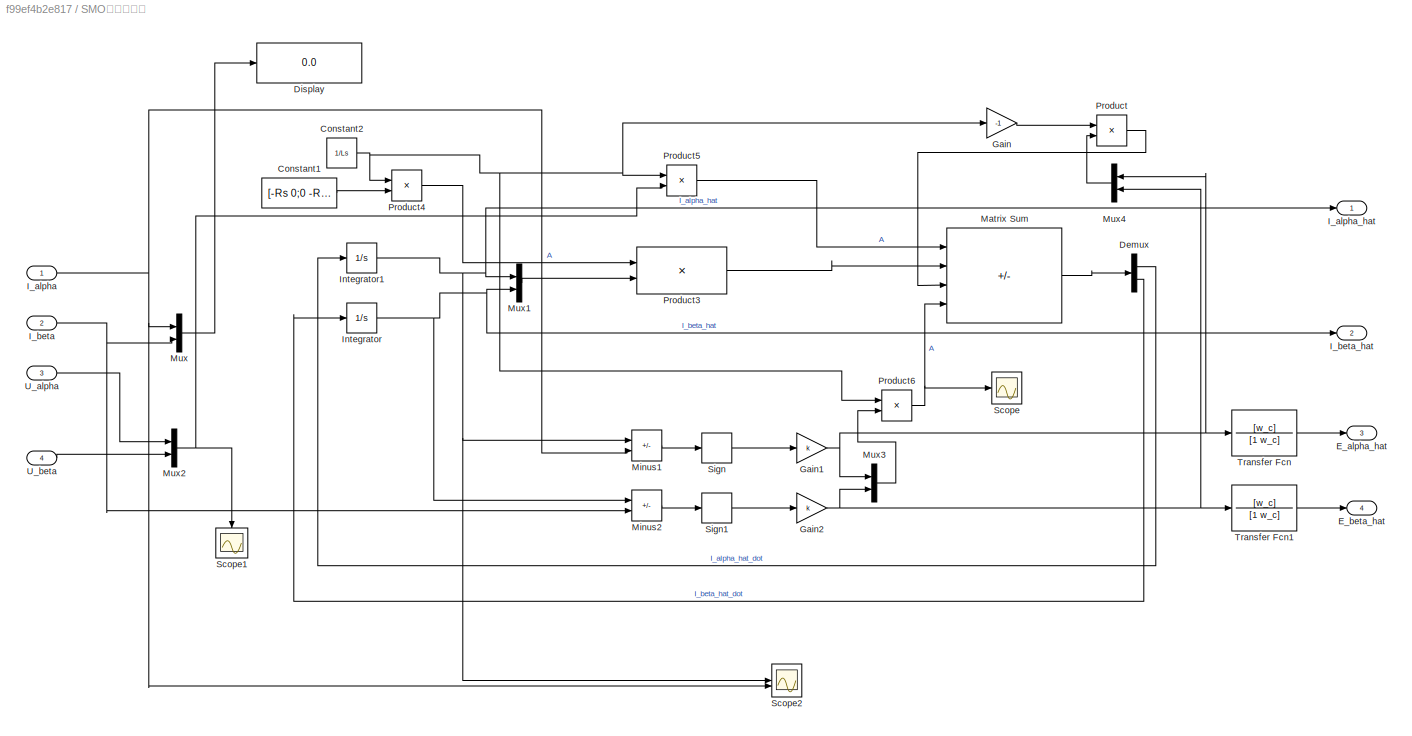
BLOCK [SubSystem] SMO滑膜观测器
BLOCK [Constant] SMO滑膜观测器/Constant1
  Value = [-Rs 0;0 -Rs]
BLOCK [Constant] SMO滑膜观测器/Constant2
  Value = 1/Ls
BLOCK [Demux] SMO滑膜观测器/Demux
  Outputs = 2
BLOCK [Display] SMO滑膜观测器/Display
  Decimation = 1
BLOCK [Outport] SMO滑膜观测器/E_alpha_hat
  Port = 3
BLOCK [Outport] SMO滑膜观测器/E_beta_hat
  Port = 4
BLOCK [Gain] SMO滑膜观测器/Gain
  Gain = -1
BLOCK [Gain] SMO滑膜观测器/Gain1
  Gain = k
BLOCK [Gain] SMO滑膜观测器/Gain2
  Gain = k
BLOCK [Inport] SMO滑膜观测器/I_alpha
BLOCK [Outport] SMO滑膜观测器/I_alpha_hat
BLOCK [Inport] SMO滑膜观测器/I_beta
  Port = 2
BLOCK [Outport] SMO滑膜观测器/I_beta_hat
  Port = 2
BLOCK [Integrator] SMO滑膜观测器/Integrator
BLOCK [Integrator] SMO滑膜观测器/Integrator1
BLOCK [Sum] SMO滑膜观测器/Matrix Sum
  IconShape = rectangular
  Inputs = +++-
BLOCK [Sum] SMO滑膜观测器/Minus1
  IconShape = rectangular
  Inputs = +-
BLOCK [Sum] SMO滑膜观测器/Minus2
  IconShape = rectangular
  Inputs = +-
BLOCK [Mux] SMO滑膜观测器/Mux
  DisplayOption = bar
  Inputs = 2
BLOCK [Mux] SMO滑膜观测器/Mux1
  DisplayOption = bar
  Inputs = 2
BLOCK [Mux] SMO滑膜观测器/Mux2
  DisplayOption = bar
  Inputs = 2
BLOCK [Mux] SMO滑膜观测器/Mux3
  DisplayOption = bar
  Inputs = 2
BLOCK [Mux] SMO滑膜观测器/Mux4
  DisplayOption = bar
  Inputs = 2
BLOCK [Product] SMO滑膜观测器/Product
BLOCK [Product] SMO滑膜观测器/Product3
  Multiplication = Matrix(*)
BLOCK [Product] SMO滑膜观测器/Product4
BLOCK [Product] SMO滑膜观测器/Product5
BLOCK [Product] SMO滑膜观测器/Product6
BLOCK [Scope] SMO滑膜观测器/Scope
  Floating = off
  NumInputPorts = 1
  ScopeSpecificationString = Simulink.scopes.TimeScopeBlockCfg('CurrentConfiguration', extmgr.ConfigurationSet(extmgr.Configuration('Core','General UI',true),extmgr.Configuration('Core','Source UI',true),extmgr.Configuration('Sources','WiredSimulink',true,'DataLoggingVariableName','ScopeData9'),extmgr.Configuration('Visuals','Time Domain',true,'SerializedDisplays',{struct('MinYLimReal','-453045.63201','MaxYLimReal','396665.83...<+1522ch>
BLOCK [Scope] SMO滑膜观测器/Scope1
  Floating = off
  NameLocation = left
  NumInputPorts = 1
  ScopeSpecificationString = Simulink.scopes.TimeScopeBlockCfg('CurrentConfiguration', extmgr.ConfigurationSet(extmgr.Configuration('Core','General UI',true),extmgr.Configuration('Core','Source UI',true),extmgr.Configuration('Sources','WiredSimulink',true,'DataLoggingVariableName','ScopeData10'),extmgr.Configuration('Visuals','Time Domain',true,'SerializedDisplays',{struct('MinYLimReal','-60.0023','MaxYLimReal','60.00771','YL...<+1495ch>
BLOCK [Scope] SMO滑膜观测器/Scope2
  Floating = off
  NumInputPorts = 2
  ScopeSpecificationString = Simulink.scopes.TimeScopeBlockCfg('CurrentConfiguration', extmgr.ConfigurationSet(extmgr.Configuration('Core','General UI',true),extmgr.Configuration('Core','Source UI',true),extmgr.Configuration('Sources','WiredSimulink',true,'DataLoggingVariableName','ScopeData1'),extmgr.Configuration('Visuals','Time Domain',true,'SerializedDisplays',{struct('MinYLimReal','-35.40348','MaxYLimReal','23.15507','YL...<+1446ch>
BLOCK [Signum] SMO滑膜观测器/Sign
BLOCK [Signum] SMO滑膜观测器/Sign1
BLOCK [TransferFcn] SMO滑膜观测器/Transfer Fcn
  Denominator = [1 w_c]
  Numerator = [w_c]
BLOCK [TransferFcn] SMO滑膜观测器/Transfer Fcn1
  Denominator = [1 w_c]
  Numerator = [w_c]
BLOCK [Inport] SMO滑膜观测器/U_alpha
  Port = 3
BLOCK [Inport] SMO滑膜观测器/U_beta
  Port = 4
BLOCK [SubSystem] SMO滑膜观测器1
  Commented = on
BLOCK [Constant] SMO滑膜观测器1/Constant1
  Value = [-Rs 0;0 -Rs]
BLOCK [Constant] SMO滑膜观测器1/Constant2
  Value = 1/Ls
BLOCK [Demux] SMO滑膜观测器1/Demux
  Outputs = 2
BLOCK [Display] SMO滑膜观测器1/Display
  Decimation = 1
BLOCK [Outport] SMO滑膜观测器1/E_alpha_hat
  Port = 3
BLOCK [Outport] SMO滑膜观测器1/E_beta_hat
  Port = 4
BLOCK [Gain] SMO滑膜观测器1/Gain1
  Gain = k
BLOCK [Gain] SMO滑膜观测器1/Gain2
  Gain = k
BLOCK [Inport] SMO滑膜观测器1/I_alpha
BLOCK [Outport] SMO滑膜观测器1/I_alpha_hat
BLOCK [Inport] SMO滑膜观测器1/I_beta
  Port = 2
BLOCK [Outport] SMO滑膜观测器1/I_beta_hat
  Port = 2
BLOCK [Integrator] SMO滑膜观测器1/Integrator
BLOCK [Integrator] SMO滑膜观测器1/Integrator1
BLOCK [Sum] SMO滑膜观测器1/Matrix Sum
  IconShape = rectangular
  Inputs = ++-
BLOCK [Sum] SMO滑膜观测器1/Minus1
  IconShape = rectangular
  Inputs = +-
BLOCK [Sum] SMO滑膜观测器1/Minus2
  IconShape = rectangular
  Inputs = +-
BLOCK [Mux] SMO滑膜观测器1/Mux
  DisplayOption = bar
  Inputs = 2
BLOCK [Mux] SMO滑膜观测器1/Mux1
  DisplayOption = bar
  Inputs = 2
BLOCK [Mux] SMO滑膜观测器1/Mux2
  DisplayOption = bar
  Inputs = 2
BLOCK [Mux] SMO滑膜观测器1/Mux3
  DisplayOption = bar
  Inputs = 2
BLOCK [Product] SMO滑膜观测器1/Product3
  Multiplication = Matrix(*)
BLOCK [Product] SMO滑膜观测器1/Product4
BLOCK [Product] SMO滑膜观测器1/Product5
BLOCK [Product] SMO滑膜观测器1/Product6
BLOCK [Scope] SMO滑膜观测器1/Scope
  Floating = off
  NumInputPorts = 1
  ScopeSpecificationString = Simulink.scopes.TimeScopeBlockCfg('CurrentConfiguration', extmgr.ConfigurationSet(extmgr.Configuration('Core','General UI',true),extmgr.Configuration('Core','Source UI',true),extmgr.Configuration('Sources','WiredSimulink',true,'DataLoggingVariableName','ScopeData9'),extmgr.Configuration('Visuals','Time Domain',true,'SerializedDisplays',{struct('MinYLimReal','-453045.63201','MaxYLimReal','396665.83...<+1522ch>
BLOCK [Scope] SMO滑膜观测器1/Scope1
  Floating = off
  NameLocation = left
  NumInputPorts = 1
  ScopeSpecificationString = Simulink.scopes.TimeScopeBlockCfg('CurrentConfiguration', extmgr.ConfigurationSet(extmgr.Configuration('Core','General UI',true),extmgr.Configuration('Core','Source UI',true),extmgr.Configuration('Sources','WiredSimulink',true,'DataLoggingVariableName','ScopeData10'),extmgr.Configuration('Visuals','Time Domain',true,'SerializedDisplays',{struct('MinYLimReal','-60.0023','MaxYLimReal','60.00771','YL...<+1495ch>
BLOCK [Scope] SMO滑膜观测器1/Scope2
  Floating = off
  NumInputPorts = 2
  ScopeSpecificationString = Simulink.scopes.TimeScopeBlockCfg('CurrentConfiguration', extmgr.ConfigurationSet(extmgr.Configuration('Core','General UI',true),extmgr.Configuration('Core','Source UI',true),extmgr.Configuration('Sources','WiredSimulink',true,'DataLoggingVariableName','ScopeData1'),extmgr.Configuration('Visuals','Time Domain',true,'SerializedDisplays',{struct('MinYLimReal','-35.40348','MaxYLimReal','23.15507','YL...<+1446ch>
BLOCK [Signum] SMO滑膜观测器1/Sign
BLOCK [Signum] SMO滑膜观测器1/Sign1
BLOCK [TransferFcn] SMO滑膜观测器1/Transfer Fcn
  Denominator = [1 w_c]
  Numerator = [w_c]
BLOCK [TransferFcn] SMO滑膜观测器1/Transfer Fcn1
  Denominator = [1 w_c]
  Numerator = [w_c]
BLOCK [Inport] SMO滑膜观测器1/U_alpha
  Port = 3
BLOCK [Inport] SMO滑膜观测器1/U_beta
  Port = 4
BLOCK [Scope] Scope
  Floating = off
  NumInputPorts = 4
  ScopeSpecificationString = Simulink.scopes.TimeScopeBlockCfg('CurrentConfiguration', extmgr.ConfigurationSet(extmgr.Configuration('Core','General UI',true),extmgr.Configuration('Core','Source UI',true),extmgr.Configuration('Sources','WiredSimulink',true,'DataLoggingVariableName','ScopeData8'),extmgr.Configuration('Visuals','Time Domain',true,'SerializedDisplays',{struct('MinYLimReal','-64.37831','MaxYLimReal','63.80985','YL...<+1570ch>
BLOCK [Scope] Scope1
  Floating = off
  NumInputPorts = 2
  ScopeSpecificationString = Simulink.scopes.TimeScopeBlockCfg('CurrentConfiguration', extmgr.ConfigurationSet(extmgr.Configuration('Core','General UI',true),extmgr.Configuration('Core','Source UI',true),extmgr.Configuration('Sources','WiredSimulink',true,'DataLoggingVariableName','ScopeData1'),extmgr.Configuration('Visuals','Time Domain',true,'SerializedDisplays',{struct('MinYLimReal','-287.65555','MaxYLimReal','2542.60709',...<+1560ch>
BLOCK [Scope] Scope10
  Floating = off
  NumInputPorts = 1
  ScopeSpecificationString = Simulink.scopes.TimeScopeBlockCfg('CurrentConfiguration', extmgr.ConfigurationSet(extmgr.Configuration('Core','General UI',true),extmgr.Configuration('Core','Source UI',true),extmgr.Configuration('Sources','WiredSimulink',true,'DataLoggingVariableName','ScopeData1'),extmgr.Configuration('Visuals','Time Domain',true,'SerializedDisplays',{struct('MinYLimReal','-0.01365','MaxYLimReal','0.12288','YLab...<+1464ch>
BLOCK [Scope] Scope11
  Floating = off
  NumInputPorts = 3
  ScopeSpecificationString = Simulink.scopes.TimeScopeBlockCfg('CurrentConfiguration', extmgr.ConfigurationSet(extmgr.Configuration('Core','General UI',true),extmgr.Configuration('Core','Source UI',true),extmgr.Configuration('Sources','WiredSimulink',true,'DataLoggingVariableName','ScopeData2'),extmgr.Configuration('Visuals','Time Domain',true,'SerializedDisplays',{struct('MinYLimReal','-533.27058','MaxYLimReal','4799.43518',...<+1648ch>
BLOCK [Scope] Scope12
  Floating = off
  NumInputPorts = 1
  ScopeSpecificationString = Simulink.scopes.TimeScopeBlockCfg('CurrentConfiguration', extmgr.ConfigurationSet(extmgr.Configuration('Core','General UI',true),extmgr.Configuration('Core','Source UI',true),extmgr.Configuration('Sources','WiredSimulink',true,'DataLoggingVariableName','ScopeData3'),extmgr.Configuration('Visuals','Time Domain',true,'SerializedDisplays',{struct('MinYLimReal','-0.7854','MaxYLimReal','7.06857','YLabe...<+1556ch>
BLOCK [Scope] Scope2
  Floating = off
  NameLocation = left
  NumInputPorts = 2
  ScopeSpecificationString = Simulink.scopes.TimeScopeBlockCfg('CurrentConfiguration', extmgr.ConfigurationSet(extmgr.Configuration('Core','General UI',true),extmgr.Configuration('Core','Source UI',true),extmgr.Configuration('Sources','WiredSimulink',true,'DataLoggingVariableName','ScopeData12'),extmgr.Configuration('Visuals','Time Domain',true,'SerializedDisplays',{struct('MinYLimReal','-0.15528','MaxYLimReal','6.60189','YLa...<+1589ch>
BLOCK [Scope] Scope3
  Floating = off
  NumInputPorts = 2
  ScopeSpecificationString = Simulink.scopes.TimeScopeBlockCfg('CurrentConfiguration', extmgr.ConfigurationSet(extmgr.Configuration('Core','General UI',true),extmgr.Configuration('Core','Source UI',true),extmgr.Configuration('Sources','WiredSimulink',true,'DataLoggingVariableName','ScopeData13'),extmgr.Configuration('Visuals','Time Domain',true,'SerializedDisplays',{struct('MinYLimReal','-27.2106','MaxYLimReal','27.26212','YL...<+1459ch>
BLOCK [Scope] Scope5
  Floating = off
  NumInputPorts = 2
  ScopeSpecificationString = Simulink.scopes.TimeScopeBlockCfg('CurrentConfiguration', extmgr.ConfigurationSet(extmgr.Configuration('Core','General UI',true),extmgr.Configuration('Core','Source UI',true),extmgr.Configuration('Sources','WiredSimulink',true,'DataLoggingVariableName','ScopeData4'),extmgr.Configuration('Visuals','Time Domain',true,'SerializedDisplays',{struct('MinYLimReal','-70.34945','MaxYLimReal','74.48327','YL...<+1459ch>
BLOCK [Scope] Scope6
  Floating = off
  NumInputPorts = 2
  ScopeSpecificationString = Simulink.scopes.TimeScopeBlockCfg('CurrentConfiguration', extmgr.ConfigurationSet(extmgr.Configuration('Core','General UI',true),extmgr.Configuration('Core','Source UI',true),extmgr.Configuration('Sources','WiredSimulink',true,'DataLoggingVariableName','ScopeData5'),extmgr.Configuration('Visuals','Time Domain',true,'SerializedDisplays',{struct('MinYLimReal','-0.06358','MaxYLimReal','0.07456','YLab...<+1410ch>
BLOCK [Scope] Scope8
  Floating = off
  NumInputPorts = 3
  ScopeSpecificationString = Simulink.scopes.TimeScopeBlockCfg('CurrentConfiguration', extmgr.ConfigurationSet(extmgr.Configuration('Core','General UI',true),extmgr.Configuration('Core','Source UI',true),extmgr.Configuration('Sources','WiredSimulink',true,'DataLoggingVariableName','ScopeData6'),extmgr.Configuration('Visuals','Time Domain',true,'SerializedDisplays',{struct('MinYLimReal','-42.88592','MaxYLimReal','43.05128','YL...<+1521ch>
BLOCK [Scope] Scope9
  Floating = off
  NumInputPorts = 1
  ScopeSpecificationString = Simulink.scopes.TimeScopeBlockCfg('CurrentConfiguration', extmgr.ConfigurationSet(extmgr.Configuration('Core','General UI',true),extmgr.Configuration('Core','Source UI',true),extmgr.Configuration('Sources','WiredSimulink',true,'DataLoggingVariableName','ScopeData7'),extmgr.Configuration('Visuals','Time Domain',true,'SerializedDisplays',{struct('MinYLimReal','-612.64634','MaxYLimReal','5513.81708',...<+1416ch>
BLOCK [SubSystem] Signal Builder
  ClipboardFcn = sigbuilder_block('clipboard');
  CloseFcn = sigbuilder_block('close');
  ContinueFcn = sigbuilder_block('continue');
  CopyFcn = sigbuilder_block('copy');
  DeleteFcn = sigbuilder_block('delete');
  LoadFcn = sigbuilder_block('load');
  MaskHideContents = on
  ModelCloseFcn = sigbuilder_block('modelClose');
  NameChangeFcn = sigbuilder_block('namechange');
  OpenFcn = sigbuilder_block('open',[458.1 40.8 550.2 399.9 ]);
  PauseFcn = sigbuilder_block('pause');
  PreSaveFcn = sigbuilder_block('preSave');
  StartFcn = sigbuilder_block('start');
  StopFcn = sigbuilder_block('stop');
  Tag = STV Subsys
BLOCK [Demux] Signal Builder/Demux
  DisplayOption = none
  Outputs = 1
  Tag = STV Demux
BLOCK [FromWorkspace] Signal Builder/FromWs
  Tag = STV FromWs
  VariableName = tuvar
BLOCK [Outport] Signal Builder/Signal 1
  Tag = STV Outport
BLOCK [Reference] Speed_PID  REF=slpidlib/PID Controller
  SourceBlock = slpidlib/PID Controller
  SourceType = PID 1dof
BLOCK [Reference] Speed_PID1  REF=slpidlib/PID Controller
  SourceBlock = slpidlib/PID Controller
  SourceType = PID 1dof
BLOCK [Reference] Speed_PID2  REF=slpidlib/PID Controller
  SourceBlock = slpidlib/PID Controller
  SourceType = PID 1dof
BLOCK [Sum] Sum
  Inputs = |+-
BLOCK [Sum] Sum1
  Inputs = |+-
BLOCK [Sum] Sum2
  Inputs = |+-
BLOCK [Switch] Switch
  Criteria = u2 > Threshold
  InputSameDT = off
  SaturateOnIntegerOverflow = off
BLOCK [Reference] Three-Phase V-I Measurement  REF=spsThreePhaseVIMeasurementLib/Three-Phase
V-I Measurement
  LibrarySourceBlock = sps_lib/Sensors and Measurements/Three-Phase\nV-I Measurement
  SourceBlock = spsThreePhaseVIMeasurementLib/Three-Phase\nV-I Measurement
  SourceType = Three-Phase VI Measurement
BLOCK [Constant] Tm1
  Value = 0
BLOCK [Reference] Two-Level Converter  REF=spsTwoLevelConverterLib/Two-Level Converter
  NameLocation = top
  SourceBlock = spsTwoLevelConverterLib/Two-Level Converter
  SourceType = Two-Level Converter
BLOCK [ZeroOrderHold] Zero-Order Hold
  Commented = through
  SampleTime = 1/F
BLOCK [ZeroOrderHold] Zero-Order Hold1
  Commented = through
  SampleTime = 1/F
BLOCK [ZeroOrderHold] Zero-Order Hold2
  Commented = through
  SampleTime = 1/F
BLOCK [ZeroOrderHold] Zero-Order Hold3
  Commented = through
  SampleTime = 1/F
BLOCK [ZeroOrderHold] Zero-Order Hold4
  Commented = through
  SampleTime = 1/F
BLOCK [Reference] powergui  REF=spspowerguiLib/powergui
  Priority = 1
  SourceBlock = spspowerguiLib/powergui
  SourceType = PSB option menu block
BLOCK [Reference] theta2  REF=simulink/Sources/Repeating
Sequence
  Commented = on
  SourceBlock = simulink/Sources/Repeating\nSequence
  SourceType = Repeating table
BLOCK [SubSystem] 反电势自适应律
BLOCK [Inport] 反电势自适应律/E_alpha_hat
BLOCK [Outport] 反电势自适应律/E_alpha_hat2
BLOCK [Inport] 反电势自适应律/E_beta_hat
  Port = 2
BLOCK [Outport] 反电势自适应律/E_beta_hat2
  Port = 2
BLOCK [Gain] 反电势自适应律/Gain2
  Gain = l_asmo
BLOCK [Gain] 反电势自适应律/Gain4
  Gain = l_asmo
BLOCK [Integrator] 反电势自适应律/Integrator
BLOCK [Integrator] 反电势自适应律/Integrator1
BLOCK [Integrator] 反电势自适应律/Integrator2
BLOCK [Sum] 反电势自适应律/Minus1
  IconShape = rectangular
  Inputs = +-
BLOCK [Sum] 反电势自适应律/Minus2
  IconShape = rectangular
  Inputs = --
BLOCK [Sum] 反电势自适应律/Minus3
  IconShape = rectangular
  Inputs = +-
BLOCK [Sum] 反电势自适应律/Minus4
  IconShape = rectangular
  Inputs = +-
BLOCK [Sum] 反电势自适应律/Minus5
  IconShape = rectangular
  Inputs = +-
BLOCK [Product] 反电势自适应律/Product3
BLOCK [Product] 反电势自适应律/Product4
BLOCK [Product] 反电势自适应律/Product5
BLOCK [Product] 反电势自适应律/Product6
BLOCK [Inport] 反电势自适应律/w_e_hat
  Port = 3
BLOCK [Outport] 反电势自适应律/w_e_hat2
  Port = 3
ANNOTATION (root): Control
ANNOTATION (root): FOC/SVPWM
ANNOTATION (root): Iq and Id control
ANNOTATION (root): PMSM
ANNOTATION (root): Scope
ANNOTATION (root): Speed Loop
ANNOTATION (root): Speed and Postion Estimation (ASMO+PLL)
ANNOTATION (root): Speed and Postion Estimation (SMO+PLL)
ANNOTATION Filter: 1) Add Subsystem or Model blocks as valid variant choices. 2) You cannot connect blocks at this level. At simulation, connectivity is automatically determined, based on the active variant and port name matching.
ANNOTATION PLL: 角度补偿
ANNOTATION PLL1: 角度补偿
LINE Analog Filter Design1:1 -> Goto41:1
LINE Analog Filter Design:1 -> Goto42:1
LINE Bus Selector:1 -> Zero-Order Hold:1
LINE Bus Selector:2 -> Zero-Order Hold1:1
LINE Bus Selector:3 -> Zero-Order Hold2:1
LINE Bus Selector:4 -> Goto5:1
LINE Bus Selector:5 -> Goto6:1
LINE Bus Selector:6 -> Goto7:1
LINE Bus Selector:7 -> Zero-Order Hold3:1
LINE Bus Selector:8 -> Zero-Order Hold4:1
LINE Bus Selector:9 -> Goto19:1
LINE Constant10:1 -> Goto29:1
LINE Constant11:1 -> Goto31:1
LINE Constant1:1 -> Switch:2
LINE Constant2:1 -> PLL:3
LINE Constant3:1 -> PLL1:3
LINE Constant4:1 -> FOC//SVPWM Algorithm:7
LINE Constant7:1 -> Goto28:1
LINE Constant9:1 -> Goto33:1
NET FOC//SVPWM Algorithm/CCR_Generator:1 -> FOC//SVPWM Algorithm/Mux:1, FOC//SVPWM Algorithm/Scope4:1
LINE FOC//SVPWM Algorithm/CCR_Generator:2 -> FOC//SVPWM Algorithm/Mux:2
NET FOC//SVPWM Algorithm/CCR_Generator:3 -> FOC//SVPWM Algorithm/Mux:3, FOC//SVPWM Algorithm/Scope4:2
LINE FOC//SVPWM Algorithm/CCR_Generator:4 -> FOC//SVPWM Algorithm/Mux:4
NET FOC//SVPWM Algorithm/CCR_Generator:5 -> FOC//SVPWM Algorithm/Mux:5, FOC//SVPWM Algorithm/Scope4:3
LINE FOC//SVPWM Algorithm/CCR_Generator:6 -> FOC//SVPWM Algorithm/Mux:6
NET FOC//SVPWM Algorithm/CNT:1 -> FOC//SVPWM Algorithm/CCR_Generator:1, FOC//SVPWM Algorithm/Scope3:1
LINE FOC//SVPWM Algorithm/Clark_Conv/Add:1 -> FOC//SVPWM Algorithm/Clark_Conv/Gain:1
NET FOC//SVPWM Algorithm/Clark_Conv/Gain2:1 -> FOC//SVPWM Algorithm/Clark_Conv/Add:1, FOC//SVPWM Algorithm/Clark_Conv/Subtract:2
NET FOC//SVPWM Algorithm/Clark_Conv/Gain3:1 -> FOC//SVPWM Algorithm/Clark_Conv/Add:2, FOC//SVPWM Algorithm/Clark_Conv/Subtract:3
LINE FOC//SVPWM Algorithm/Clark_Conv/Gain:1 -> FOC//SVPWM Algorithm/Clark_Conv/Ibeta:1
LINE FOC//SVPWM Algorithm/Clark_Conv/Ia:1 -> FOC//SVPWM Algorithm/Clark_Conv/Subtract:1
LINE FOC//SVPWM Algorithm/Clark_Conv/Ib:1 -> FOC//SVPWM Algorithm/Clark_Conv/Gain2:1
LINE FOC//SVPWM Algorithm/Clark_Conv/Ic:1 -> FOC//SVPWM Algorithm/Clark_Conv/Gain3:1
LINE FOC//SVPWM Algorithm/Clark_Conv/Subtract:1 -> FOC//SVPWM Algorithm/Clark_Conv/Ialpha:1
LINE FOC//SVPWM Algorithm/Clark_Conv1/Add:1 -> FOC//SVPWM Algorithm/Clark_Conv1/Gain:1
NET FOC//SVPWM Algorithm/Clark_Conv1/Gain2:1 -> FOC//SVPWM Algorithm/Clark_Conv1/Add:1, FOC//SVPWM Algorithm/Clark_Conv1/Subtract:2
NET FOC//SVPWM Algorithm/Clark_Conv1/Gain3:1 -> FOC//SVPWM Algorithm/Clark_Conv1/Add:2, FOC//SVPWM Algorithm/Clark_Conv1/Subtract:3
LINE FOC//SVPWM Algorithm/Clark_Conv1/Gain:1 -> FOC//SVPWM Algorithm/Clark_Conv1/Ibeta:1
LINE FOC//SVPWM Algorithm/Clark_Conv1/Ia:1 -> FOC//SVPWM Algorithm/Clark_Conv1/Subtract:1
LINE FOC//SVPWM Algorithm/Clark_Conv1/Ib:1 -> FOC//SVPWM Algorithm/Clark_Conv1/Gain2:1
LINE FOC//SVPWM Algorithm/Clark_Conv1/Ic:1 -> FOC//SVPWM Algorithm/Clark_Conv1/Gain3:1
LINE FOC//SVPWM Algorithm/Clark_Conv1/Subtract:1 -> FOC//SVPWM Algorithm/Clark_Conv1/Ialpha:1
LINE FOC//SVPWM Algorithm/Clark_Conv1:1 -> FOC//SVPWM Algorithm/U_alpha:1
LINE FOC//SVPWM Algorithm/Clark_Conv1:2 -> FOC//SVPWM Algorithm/U_beta:1
NET FOC//SVPWM Algorithm/Clark_Conv:1 -> FOC//SVPWM Algorithm/I_alpha:1, FOC//SVPWM Algorithm/Park_Conv:2, FOC//SVPWM Algorithm/Scope8:1
NET FOC//SVPWM Algorithm/Clark_Conv:2 -> FOC//SVPWM Algorithm/I_beta:1, FOC//SVPWM Algorithm/Park_Conv:3, FOC//SVPWM Algorithm/Scope8:2
LINE FOC//SVPWM Algorithm/Data Type Conversion:1 -> FOC//SVPWM Algorithm/g:1
LINE FOC//SVPWM Algorithm/DeadBand:1 -> FOC//SVPWM Algorithm/Data Type Conversion:1
LINE FOC//SVPWM Algorithm/Demux:1 -> FOC//SVPWM Algorithm/Clark_Conv1:1
LINE FOC//SVPWM Algorithm/Demux:2 -> FOC//SVPWM Algorithm/Clark_Conv1:2
LINE FOC//SVPWM Algorithm/Demux:3 -> FOC//SVPWM Algorithm/Clark_Conv1:3
LINE FOC//SVPWM Algorithm/Ia:1 -> FOC//SVPWM Algorithm/Clark_Conv:1
LINE FOC//SVPWM Algorithm/Ib:1 -> FOC//SVPWM Algorithm/Clark_Conv:2
LINE FOC//SVPWM Algorithm/Ic:1 -> FOC//SVPWM Algorithm/Clark_Conv:3
LINE FOC//SVPWM Algorithm/Mux:1 -> FOC//SVPWM Algorithm/DeadBand:1
LINE FOC//SVPWM Algorithm/Park_Conv/Add:1 -> FOC//SVPWM Algorithm/Park_Conv/Id:1
NET FOC//SVPWM Algorithm/Park_Conv/Ialpha:1 -> FOC//SVPWM Algorithm/Park_Conv/Product1:1, FOC//SVPWM Algorithm/Park_Conv/Product2:1
NET FOC//SVPWM Algorithm/Park_Conv/Ibeta:1 -> FOC//SVPWM Algorithm/Park_Conv/Product3:1, FOC//SVPWM Algorithm/Park_Conv/Product:1
LINE FOC//SVPWM Algorithm/Park_Conv/Product1:1 -> FOC//SVPWM Algorithm/Park_Conv/Subtract:2
LINE FOC//SVPWM Algorithm/Park_Conv/Product2:1 -> FOC//SVPWM Algorithm/Park_Conv/Add:1
LINE FOC//SVPWM Algorithm/Park_Conv/Product3:1 -> FOC//SVPWM Algorithm/Park_Conv/Add:2
LINE FOC//SVPWM Algorithm/Park_Conv/Product:1 -> FOC//SVPWM Algorithm/Park_Conv/Subtract:1
NET FOC//SVPWM Algorithm/Park_Conv/SinCos:1 -> FOC//SVPWM Algorithm/Park_Conv/Product1:2, FOC//SVPWM Algorithm/Park_Conv/Product3:2
NET FOC//SVPWM Algorithm/Park_Conv/SinCos:2 -> FOC//SVPWM Algorithm/Park_Conv/Product2:2, FOC//SVPWM Algorithm/Park_Conv/Product:2
LINE FOC//SVPWM Algorithm/Park_Conv/Subtract:1 -> FOC//SVPWM Algorithm/Park_Conv/Iq:1
LINE FOC//SVPWM Algorithm/Park_Conv/theta_2pi:1 -> FOC//SVPWM Algorithm/Park_Conv/SinCos:1
NET FOC//SVPWM Algorithm/Park_Conv:1 -> FOC//SVPWM Algorithm/Iq:1, FOC//SVPWM Algorithm/Scope10:1
NET FOC//SVPWM Algorithm/Park_Conv:2 -> FOC//SVPWM Algorithm/Id:1, FOC//SVPWM Algorithm/Scope10:2
LINE FOC//SVPWM Algorithm/Park_ReverseConv/Add:1 -> FOC//SVPWM Algorithm/Park_ReverseConv/Ubeta:1
LINE FOC//SVPWM Algorithm/Park_ReverseConv/Product1:1 -> FOC//SVPWM Algorithm/Park_ReverseConv/Subtract:2
LINE FOC//SVPWM Algorithm/Park_ReverseConv/Product2:1 -> FOC//SVPWM Algorithm/Park_ReverseConv/Add:1
LINE FOC//SVPWM Algorithm/Park_ReverseConv/Product3:1 -> FOC//SVPWM Algorithm/Park_ReverseConv/Add:2
LINE FOC//SVPWM Algorithm/Park_ReverseConv/Product:1 -> FOC//SVPWM Algorithm/Park_ReverseConv/Subtract:1
NET FOC//SVPWM Algorithm/Park_ReverseConv/SinCos:1 -> FOC//SVPWM Algorithm/Park_ReverseConv/Product1:2, FOC//SVPWM Algorithm/Park_ReverseConv/Product2:2
NET FOC//SVPWM Algorithm/Park_ReverseConv/SinCos:2 -> FOC//SVPWM Algorithm/Park_ReverseConv/Product3:2, FOC//SVPWM Algorithm/Park_ReverseConv/Product:2
LINE FOC//SVPWM Algorithm/Park_ReverseConv/Subtract:1 -> FOC//SVPWM Algorithm/Park_ReverseConv/Ualpha:1
NET FOC//SVPWM Algorithm/Park_ReverseConv/Ud:1 -> FOC//SVPWM Algorithm/Park_ReverseConv/Product2:1, FOC//SVPWM Algorithm/Park_ReverseConv/Product:1
NET FOC//SVPWM Algorithm/Park_ReverseConv/Uq:1 -> FOC//SVPWM Algorithm/Park_ReverseConv/Product1:1, FOC//SVPWM Algorithm/Park_ReverseConv/Product3:1
LINE FOC//SVPWM Algorithm/Park_ReverseConv/theta_2pi:1 -> FOC//SVPWM Algorithm/Park_ReverseConv/SinCos:1
NET FOC//SVPWM Algorithm/Park_ReverseConv:1 -> FOC//SVPWM Algorithm/SVPWM:1, FOC//SVPWM Algorithm/Scope:1
NET FOC//SVPWM Algorithm/Park_ReverseConv:2 -> FOC//SVPWM Algorithm/SVPWM:2, FOC//SVPWM Algorithm/Scope:2
NET FOC//SVPWM Algorithm/SVPWM/CCR_Caculate/Add1:1 -> FOC//SVPWM Algorithm/SVPWM/CCR_Caculate/Index Vector1:3, FOC//SVPWM Algorithm/SVPWM/CCR_Caculate/Index Vector1:7, FOC//SVPWM Algorithm/SVPWM/CCR_Caculate/Index Vector2:2, FOC//SVPWM Algorithm/SVPWM/CCR_Caculate/Index Vector2:4, FOC//SVPWM Algorithm/SVPWM/CCR_Caculate/Index Vector:5, FOC//SVPWM Algorithm/SVPWM/CCR_Caculate/Index Vector:6
NET FOC//SVPWM Algorithm/SVPWM/CCR_Caculate/Add:1 -> FOC//SVPWM Algorithm/SVPWM/CCR_Caculate/Add1:1, FOC//SVPWM Algorithm/SVPWM/CCR_Caculate/Index Vector1:4, FOC//SVPWM Algorithm/SVPWM/CCR_Caculate/Index Vector1:5, FOC//SVPWM Algorithm/SVPWM/CCR_Caculate/Index Vector2:3, FOC//SVPWM Algorithm/SVPWM/CCR_Caculate/Index Vector2:6, FOC//SVPWM Algorithm/SVPWM/CCR_Caculate/Index Vector:2, FOC//SVPWM Algorithm/SVPWM/CCR_Caculate/Index Vector:7
LINE FOC//SVPWM Algorithm/SVPWM/CCR_Caculate/Gain1:1 -> FOC//SVPWM Algorithm/SVPWM/CCR_Caculate/Add:2
LINE FOC//SVPWM Algorithm/SVPWM/CCR_Caculate/Gain2:1 -> FOC//SVPWM Algorithm/SVPWM/CCR_Caculate/Add1:2
NET FOC//SVPWM Algorithm/SVPWM/CCR_Caculate/Gain:1 -> FOC//SVPWM Algorithm/SVPWM/CCR_Caculate/Add:1, FOC//SVPWM Algorithm/SVPWM/CCR_Caculate/Index Vector1:2, FOC//SVPWM Algorithm/SVPWM/CCR_Caculate/Index Vector1:6, FOC//SVPWM Algorithm/SVPWM/CCR_Caculate/Index Vector2:5, FOC//SVPWM Algorithm/SVPWM/CCR_Caculate/Index Vector2:7, FOC//SVPWM Algorithm/SVPWM/CCR_Caculate/Index Vector:3, FOC//SVPWM Algorithm/SVPWM/CCR_Caculate/Index Vector:4
LINE FOC//SVPWM Algorithm/SVPWM/CCR_Caculate/Index Vector1:1 -> FOC//SVPWM Algorithm/SVPWM/CCR_Caculate/Tcmp2:1
LINE FOC//SVPWM Algorithm/SVPWM/CCR_Caculate/Index Vector2:1 -> FOC//SVPWM Algorithm/SVPWM/CCR_Caculate/Tcmp3:1
LINE FOC//SVPWM Algorithm/SVPWM/CCR_Caculate/Index Vector:1 -> FOC//SVPWM Algorithm/SVPWM/CCR_Caculate/Tcmp1:1
NET FOC//SVPWM Algorithm/SVPWM/CCR_Caculate/N:1 -> FOC//SVPWM Algorithm/SVPWM/CCR_Caculate/Index Vector1:1, FOC//SVPWM Algorithm/SVPWM/CCR_Caculate/Index Vector2:1, FOC//SVPWM Algorithm/SVPWM/CCR_Caculate/Index Vector:1
LINE FOC//SVPWM Algorithm/SVPWM/CCR_Caculate/Subtract:1 -> FOC//SVPWM Algorithm/SVPWM/CCR_Caculate/Gain:1
NET FOC//SVPWM Algorithm/SVPWM/CCR_Caculate/T1:1 -> FOC//SVPWM Algorithm/SVPWM/CCR_Caculate/Gain1:1, FOC//SVPWM Algorithm/SVPWM/CCR_Caculate/Subtract:2
NET FOC//SVPWM Algorithm/SVPWM/CCR_Caculate/T2:1 -> FOC//SVPWM Algorithm/SVPWM/CCR_Caculate/Gain2:1, FOC//SVPWM Algorithm/SVPWM/CCR_Caculate/Subtract:3
LINE FOC//SVPWM Algorithm/SVPWM/CCR_Caculate/Ts:1 -> FOC//SVPWM Algorithm/SVPWM/CCR_Caculate/Subtract:1
NET FOC//SVPWM Algorithm/SVPWM/CCR_Caculate:1 -> FOC//SVPWM Algorithm/SVPWM/Scope2:1, FOC//SVPWM Algorithm/SVPWM/Tcmp1:1
NET FOC//SVPWM Algorithm/SVPWM/CCR_Caculate:2 -> FOC//SVPWM Algorithm/SVPWM/Scope2:2, FOC//SVPWM Algorithm/SVPWM/Tcmp2:1
NET FOC//SVPWM Algorithm/SVPWM/CCR_Caculate:3 -> FOC//SVPWM Algorithm/SVPWM/Scope2:3, FOC//SVPWM Algorithm/SVPWM/Tcmp3:1
NET FOC//SVPWM Algorithm/SVPWM/Gain1:1 -> FOC//SVPWM Algorithm/SVPWM/Index Vector1:3, FOC//SVPWM Algorithm/SVPWM/Index Vector:5
NET FOC//SVPWM Algorithm/SVPWM/Gain2:1 -> FOC//SVPWM Algorithm/SVPWM/Index Vector1:6, FOC//SVPWM Algorithm/SVPWM/Index Vector:7
NET FOC//SVPWM Algorithm/SVPWM/Gain:1 -> FOC//SVPWM Algorithm/SVPWM/Index Vector1:7, FOC//SVPWM Algorithm/SVPWM/Index Vector:4
LINE FOC//SVPWM Algorithm/SVPWM/Index Vector1:1 -> FOC//SVPWM Algorithm/SVPWM/OverModulationHandle:2
LINE FOC//SVPWM Algorithm/SVPWM/Index Vector:1 -> FOC//SVPWM Algorithm/SVPWM/OverModulationHandle:1
NET FOC//SVPWM Algorithm/SVPWM/OverModulationHandle:1 -> FOC//SVPWM Algorithm/SVPWM/CCR_Caculate:1, FOC//SVPWM Algorithm/SVPWM/Scope1:1
NET FOC//SVPWM Algorithm/SVPWM/OverModulationHandle:2 -> FOC//SVPWM Algorithm/SVPWM/CCR_Caculate:2, FOC//SVPWM Algorithm/SVPWM/Scope1:2
NET FOC//SVPWM Algorithm/SVPWM/Ts:1 -> FOC//SVPWM Algorithm/SVPWM/CCR_Caculate:3, FOC//SVPWM Algorithm/SVPWM/OverModulationHandle:3, FOC//SVPWM Algorithm/SVPWM/XYZ:4
NET FOC//SVPWM Algorithm/SVPWM/Ualpha:1 -> FOC//SVPWM Algorithm/SVPWM/Vector_Judge:1, FOC//SVPWM Algorithm/SVPWM/XYZ:1
NET FOC//SVPWM Algorithm/SVPWM/Ubeta:1 -> FOC//SVPWM Algorithm/SVPWM/Vector_Judge:2, FOC//SVPWM Algorithm/SVPWM/XYZ:2
LINE FOC//SVPWM Algorithm/SVPWM/Vdc:1 -> FOC//SVPWM Algorithm/SVPWM/XYZ:3
NET FOC//SVPWM Algorithm/SVPWM/Vector_Judge/Add:1 -> FOC//SVPWM Algorithm/SVPWM/Vector_Judge/N:1, FOC//SVPWM Algorithm/SVPWM/Vector_Judge/Scope:1
NET FOC//SVPWM Algorithm/SVPWM/Vector_Judge/Constant1:1 -> FOC//SVPWM Algorithm/SVPWM/Vector_Judge/Switch1:3, FOC//SVPWM Algorithm/SVPWM/Vector_Judge/Switch2:3, FOC//SVPWM Algorithm/SVPWM/Vector_Judge/Switch:3
NET FOC//SVPWM Algorithm/SVPWM/Vector_Judge/Constant:1 -> FOC//SVPWM Algorithm/SVPWM/Vector_Judge/Switch1:1, FOC//SVPWM Algorithm/SVPWM/Vector_Judge/Switch2:1, FOC//SVPWM Algorithm/SVPWM/Vector_Judge/Switch:1
NET FOC//SVPWM Algorithm/SVPWM/Vector_Judge/Gain1:1 -> FOC//SVPWM Algorithm/SVPWM/Vector_Judge/Subtract1:2, FOC//SVPWM Algorithm/SVPWM/Vector_Judge/Subtract:2
LINE FOC//SVPWM Algorithm/SVPWM/Vector_Judge/Gain2:1 -> FOC//SVPWM Algorithm/SVPWM/Vector_Judge/Add:2
LINE FOC//SVPWM Algorithm/SVPWM/Vector_Judge/Gain3:1 -> FOC//SVPWM Algorithm/SVPWM/Vector_Judge/Add:3
NET FOC//SVPWM Algorithm/SVPWM/Vector_Judge/Gain:1 -> FOC//SVPWM Algorithm/SVPWM/Vector_Judge/Subtract1:1, FOC//SVPWM Algorithm/SVPWM/Vector_Judge/Subtract:1
LINE FOC//SVPWM Algorithm/SVPWM/Vector_Judge/Subtract1:1 -> FOC//SVPWM Algorithm/SVPWM/Vector_Judge/Switch2:2
LINE FOC//SVPWM Algorithm/SVPWM/Vector_Judge/Subtract:1 -> FOC//SVPWM Algorithm/SVPWM/Vector_Judge/Switch1:2
LINE FOC//SVPWM Algorithm/SVPWM/Vector_Judge/Switch1:1 -> FOC//SVPWM Algorithm/SVPWM/Vector_Judge/Gain3:1
LINE FOC//SVPWM Algorithm/SVPWM/Vector_Judge/Switch2:1 -> FOC//SVPWM Algorithm/SVPWM/Vector_Judge/Gain2:1
LINE FOC//SVPWM Algorithm/SVPWM/Vector_Judge/Switch:1 -> FOC//SVPWM Algorithm/SVPWM/Vector_Judge/Add:1
LINE FOC//SVPWM Algorithm/SVPWM/Vector_Judge/Ualpha:1 -> FOC//SVPWM Algorithm/SVPWM/Vector_Judge/Gain:1
NET FOC//SVPWM Algorithm/SVPWM/Vector_Judge/Ubeta:1 -> FOC//SVPWM Algorithm/SVPWM/Vector_Judge/Gain1:1, FOC//SVPWM Algorithm/SVPWM/Vector_Judge/Switch:2
NET FOC//SVPWM Algorithm/SVPWM/Vector_Judge:1 -> FOC//SVPWM Algorithm/SVPWM/CCR_Caculate:4, FOC//SVPWM Algorithm/SVPWM/Index Vector1:1, FOC//SVPWM Algorithm/SVPWM/Index Vector:1
LINE FOC//SVPWM Algorithm/SVPWM/XYZ/Add1:1 -> FOC//SVPWM Algorithm/SVPWM/XYZ/Product2:1
LINE FOC//SVPWM Algorithm/SVPWM/XYZ/Add:1 -> FOC//SVPWM Algorithm/SVPWM/XYZ/Product1:1
NET FOC//SVPWM Algorithm/SVPWM/XYZ/Gain1:1 -> FOC//SVPWM Algorithm/SVPWM/XYZ/Product1:2, FOC//SVPWM Algorithm/SVPWM/XYZ/Product2:2
NET FOC//SVPWM Algorithm/SVPWM/XYZ/Gain2:1 -> FOC//SVPWM Algorithm/SVPWM/XYZ/Add1:1, FOC//SVPWM Algorithm/SVPWM/XYZ/Add:1
NET FOC//SVPWM Algorithm/SVPWM/XYZ/Gain3:1 -> FOC//SVPWM Algorithm/SVPWM/XYZ/Add1:2, FOC//SVPWM Algorithm/SVPWM/XYZ/Add:2
LINE FOC//SVPWM Algorithm/SVPWM/XYZ/Gain:1 -> FOC//SVPWM Algorithm/SVPWM/XYZ/Product:1
LINE FOC//SVPWM Algorithm/SVPWM/XYZ/Product1:1 -> FOC//SVPWM Algorithm/SVPWM/XYZ/Y:1
LINE FOC//SVPWM Algorithm/SVPWM/XYZ/Product2:1 -> FOC//SVPWM Algorithm/SVPWM/XYZ/Z:1
LINE FOC//SVPWM Algorithm/SVPWM/XYZ/Product:1 -> FOC//SVPWM Algorithm/SVPWM/XYZ/X:1
NET FOC//SVPWM Algorithm/SVPWM/XYZ/Ts:1 -> FOC//SVPWM Algorithm/SVPWM/XYZ/Gain1:1, FOC//SVPWM Algorithm/SVPWM/XYZ/Product:2
LINE FOC//SVPWM Algorithm/SVPWM/XYZ/Ualpha:1 -> FOC//SVPWM Algorithm/SVPWM/XYZ/Gain2:1
NET FOC//SVPWM Algorithm/SVPWM/XYZ/Ubeta:1 -> FOC//SVPWM Algorithm/SVPWM/XYZ/Gain3:1, FOC//SVPWM Algorithm/SVPWM/XYZ/Gain:1
NET FOC//SVPWM Algorithm/SVPWM/XYZ/Vdc:1 -> FOC//SVPWM Algorithm/SVPWM/XYZ/Product1:3, FOC//SVPWM Algorithm/SVPWM/XYZ/Product2:3, FOC//SVPWM Algorithm/SVPWM/XYZ/Product:3
NET FOC//SVPWM Algorithm/SVPWM/XYZ:1 -> FOC//SVPWM Algorithm/SVPWM/Gain1:1, FOC//SVPWM Algorithm/SVPWM/Index Vector1:4, FOC//SVPWM Algorithm/SVPWM/Index Vector:6, FOC//SVPWM Algorithm/SVPWM/Scope:1
NET FOC//SVPWM Algorithm/SVPWM/XYZ:2 -> FOC//SVPWM Algorithm/SVPWM/Gain2:1, FOC//SVPWM Algorithm/SVPWM/Index Vector1:2, FOC//SVPWM Algorithm/SVPWM/Index Vector:3, FOC//SVPWM Algorithm/SVPWM/Scope:2
NET FOC//SVPWM Algorithm/SVPWM/XYZ:3 -> FOC//SVPWM Algorithm/SVPWM/Gain:1, FOC//SVPWM Algorithm/SVPWM/Index Vector1:5, FOC//SVPWM Algorithm/SVPWM/Index Vector:2, FOC//SVPWM Algorithm/SVPWM/Scope:3
NET FOC//SVPWM Algorithm/SVPWM:1 -> FOC//SVPWM Algorithm/CCR_Generator:2, FOC//SVPWM Algorithm/Scope9:1
NET FOC//SVPWM Algorithm/SVPWM:2 -> FOC//SVPWM Algorithm/CCR_Generator:3, FOC//SVPWM Algorithm/Scope9:2
NET FOC//SVPWM Algorithm/SVPWM:3 -> FOC//SVPWM Algorithm/CCR_Generator:4, FOC//SVPWM Algorithm/Scope9:3
LINE FOC//SVPWM Algorithm/Ts:1 -> FOC//SVPWM Algorithm/SVPWM:4
LINE FOC//SVPWM Algorithm/Ud:1 -> FOC//SVPWM Algorithm/Park_ReverseConv:2
LINE FOC//SVPWM Algorithm/Uq:1 -> FOC//SVPWM Algorithm/Park_ReverseConv:1
NET FOC//SVPWM Algorithm/V_abc:1 -> FOC//SVPWM Algorithm/Demux:1, FOC//SVPWM Algorithm/Scope1:1
LINE FOC//SVPWM Algorithm/Vdc:1 -> FOC//SVPWM Algorithm/SVPWM:3
NET FOC//SVPWM Algorithm/theta_2pi:1 -> FOC//SVPWM Algorithm/Park_Conv:1, FOC//SVPWM Algorithm/Park_ReverseConv:3
LINE FOC//SVPWM Algorithm:1 -> Goto:1
LINE FOC//SVPWM Algorithm:2 -> Goto10:1
LINE FOC//SVPWM Algorithm:3 -> Goto11:1
LINE FOC//SVPWM Algorithm:4 -> Goto21:1
LINE FOC//SVPWM Algorithm:5 -> Goto24:1
LINE FOC//SVPWM Algorithm:6 -> Goto1:1
LINE FOC//SVPWM Algorithm:7 -> Goto14:1
NET Filter/LowpassFilter/Lowpass filter1/Add:1 -> Filter/LowpassFilter/Lowpass filter1/Delay:1, Filter/LowpassFilter/Lowpass filter1/Ia:1
NET Filter/LowpassFilter/Lowpass filter1/Delay:1 -> Filter/LowpassFilter/Lowpass filter1/Add:2, Filter/LowpassFilter/Lowpass filter1/Subtract:2
LINE Filter/LowpassFilter/Lowpass filter1/K:1 -> Filter/LowpassFilter/Lowpass filter1/Product:1
LINE Filter/LowpassFilter/Lowpass filter1/Product:1 -> Filter/LowpassFilter/Lowpass filter1/Add:1
LINE Filter/LowpassFilter/Lowpass filter1/Subtract:1 -> Filter/LowpassFilter/Lowpass filter1/Product:2
LINE Filter/LowpassFilter/Lowpass filter1/u(t):1 -> Filter/LowpassFilter/Lowpass filter1/Subtract:1
LINE Filter/LowpassFilter/Lowpass filter1:1 -> Filter/LowpassFilter/Ia:1
NET Filter/LowpassFilter/Lowpass filter2/Add:1 -> Filter/LowpassFilter/Lowpass filter2/Delay:1, Filter/LowpassFilter/Lowpass filter2/Ib:1
NET Filter/LowpassFilter/Lowpass filter2/Delay:1 -> Filter/LowpassFilter/Lowpass filter2/Add:2, Filter/LowpassFilter/Lowpass filter2/Subtract:2
LINE Filter/LowpassFilter/Lowpass filter2/K:1 -> Filter/LowpassFilter/Lowpass filter2/Product:1
LINE Filter/LowpassFilter/Lowpass filter2/Product:1 -> Filter/LowpassFilter/Lowpass filter2/Add:1
LINE Filter/LowpassFilter/Lowpass filter2/Subtract:1 -> Filter/LowpassFilter/Lowpass filter2/Product:2
LINE Filter/LowpassFilter/Lowpass filter2/u(t):1 -> Filter/LowpassFilter/Lowpass filter2/Subtract:1
LINE Filter/LowpassFilter/Lowpass filter2:1 -> Filter/LowpassFilter/Ib:1
NET Filter/LowpassFilter/Lowpass filter3/Add:1 -> Filter/LowpassFilter/Lowpass filter3/Delay:1, Filter/LowpassFilter/Lowpass filter3/Ic:1
NET Filter/LowpassFilter/Lowpass filter3/Delay:1 -> Filter/LowpassFilter/Lowpass filter3/Add:2, Filter/LowpassFilter/Lowpass filter3/Subtract:2
LINE Filter/LowpassFilter/Lowpass filter3/K:1 -> Filter/LowpassFilter/Lowpass filter3/Product:1
LINE Filter/LowpassFilter/Lowpass filter3/Product:1 -> Filter/LowpassFilter/Lowpass filter3/Add:1
LINE Filter/LowpassFilter/Lowpass filter3/Subtract:1 -> Filter/LowpassFilter/Lowpass filter3/Product:2
LINE Filter/LowpassFilter/Lowpass filter3/u(t):1 -> Filter/LowpassFilter/Lowpass filter3/Subtract:1
LINE Filter/LowpassFilter/Lowpass filter3:1 -> Filter/LowpassFilter/Ic:1
NET Filter/LowpassFilter/a:1 -> Filter/LowpassFilter/Lowpass filter1:1, Filter/LowpassFilter/Lowpass filter2:1, Filter/LowpassFilter/Lowpass filter3:1
LINE Filter/LowpassFilter/ln1:1 -> Filter/LowpassFilter/Lowpass filter1:2
LINE Filter/LowpassFilter/ln2:1 -> Filter/LowpassFilter/Lowpass filter2:2
LINE Filter/LowpassFilter/ln3:1 -> Filter/LowpassFilter/Lowpass filter3:2
LINE Filter/NoneFilter/ln1:1 -> Filter/NoneFilter/Ia:1
LINE Filter/NoneFilter/ln2:1 -> Filter/NoneFilter/Ib:1
LINE Filter/NoneFilter/ln3:1 -> Filter/NoneFilter/Ic:1
LINE Filter:1 -> Goto2:1
LINE Filter:2 -> Goto3:1
LINE Filter:3 -> Goto4:1
LINE From10:1 -> FOC//SVPWM Algorithm:5
LINE From11:1 -> FOC//SVPWM Algorithm:6
LINE From12:1 -> Sum:1
LINE From13:1 -> Sum:2
LINE From14:1 -> Sum1:1
LINE From15:1 -> Scope:1
LINE From16:1 -> Scope:2
LINE From17:1 -> Scope:3
LINE From18:1 -> Sum1:2
LINE From19:1 -> SMO滑膜观测器1:1
LINE From1:1 -> SMO滑膜观测器:1
LINE From20:1 -> Scope:4
NET From21:1 -> Gain1:1, Gain3:1
LINE From22:1 -> Switch:1
LINE From23:1 -> SMO滑膜观测器1:2
LINE From24:1 -> PLL1:1
LINE From26:1 -> FOC//SVPWM Algorithm:8
LINE From27:1 -> Sum2:1
LINE From28:1 -> Scope5:1
LINE From29:1 -> Scope8:2
LINE From2:1 -> Gain:1
LINE From30:1 -> Scope8:3
LINE From31:1 -> Scope8:1
LINE From32:1 -> Scope12:1
LINE From33:1 -> Scope9:1
LINE From34:1 -> Scope10:1
LINE From35:1 -> Scope11:1
LINE From36:1 -> Scope11:2
LINE From37:1 -> Scope6:1
LINE From38:1 -> Scope5:2
LINE From39:1 -> Scope6:2
LINE From3:1 -> SMO滑膜观测器:2
LINE From40:1 -> Scope2:2
LINE From41:1 -> Scope2:1
LINE From42:1 -> Scope3:1
LINE From43:1 -> Scope3:2
LINE From44:1 -> PLL1:2
LINE From45:1 -> Scope11:3
LINE From46:1 -> FOC//SVPWM Algorithm:3
LINE From47:1 -> SMO滑膜观测器1:3
LINE From48:1 -> PLL:1
LINE From49:1 -> Gain8:1
LINE From4:1 -> PMSM:1
LINE From50:1 -> Switch:3
LINE From51:1 -> SMO滑膜观测器1:4
LINE From52:1 -> 反电势自适应律:1
LINE From53:1 -> 反电势自适应律:2
LINE From54:1 -> 反电势自适应律:3
LINE From55:1 -> PLL:2
LINE From56:1 -> Scope1:2
LINE From57:1 -> Scope1:1
LINE From5:1 -> SMO滑膜观测器:3
LINE From6:1 -> SMO滑膜观测器:4
LINE From7:1 -> FOC//SVPWM Algorithm:1
LINE From8:1 -> FOC//SVPWM Algorithm:2
LINE From9:1 -> FOC//SVPWM Algorithm:4
LINE From:1 -> Two-Level Converter:1
LINE Gain1:1 -> Goto20:1
LINE Gain3:1 -> Goto17:1
LINE Gain8:1 -> Gain9:1
LINE Gain9:1 -> Goto38:1
LINE Gain:1 -> MATLAB Function:1
LINE MATLAB Function:1 -> Goto16:1
LINE PLL/Add2:1 -> PLL/Analog Filter Design:1
LINE PLL/Add:1 -> PLL/MATLAB Function1:1
NET PLL/Analog Filter Design:1 -> PLL/Divide:1, PLL/Integrator1:1, PLL/w_e_hat:1
LINE PLL/Divide:1 -> PLL/Atan:1
LINE PLL/E_alpha_hat:1 -> PLL/Gain5:1
LINE PLL/E_beta_hat:1 -> PLL/Product4:1
LINE PLL/Gain5:1 -> PLL/Product3:1
LINE PLL/Gain6:1 -> PLL/Add2:1
LINE PLL/Gain7:1 -> PLL/Integrator:1
NET PLL/Integrator1:1 -> PLL/Add:1, PLL/SinCos:1
LINE PLL/Integrator:1 -> PLL/Add2:2
LINE PLL/MATLAB Function1:1 -> PLL/theta_2pi:1
LINE PLL/Product3:1 -> PLL/Sum3:1
LINE PLL/Product4:1 -> PLL/Sum3:2
LINE PLL/SinCos:1 -> PLL/Product4:2
LINE PLL/SinCos:2 -> PLL/Product3:2
NET PLL/Sum3:1 -> PLL/Gain6:1, PLL/Gain7:1
LINE PLL/w_c:1 -> PLL/Divide:2
LINE PLL1/Add2:1 -> PLL1/Analog Filter Design:1
LINE PLL1/Add:1 -> PLL1/MATLAB Function1:1
NET PLL1/Analog Filter Design:1 -> PLL1/Divide:1, PLL1/Gain8:1, PLL1/Integrator1:1
LINE PLL1/Divide:1 -> PLL1/Atan:1
LINE PLL1/E_alpha_hat:1 -> PLL1/Gain5:1
LINE PLL1/E_beta_hat:1 -> PLL1/Product4:1
LINE PLL1/Gain5:1 -> PLL1/Product3:1
LINE PLL1/Gain6:1 -> PLL1/Add2:1
LINE PLL1/Gain7:1 -> PLL1/Integrator:1
LINE PLL1/Gain8:1 -> PLL1/Gain9:1
LINE PLL1/Gain9:1 -> PLL1/Speed_Actual:1
NET PLL1/Integrator1:1 -> PLL1/Add:1, PLL1/SinCos:1
LINE PLL1/Integrator:1 -> PLL1/Add2:2
LINE PLL1/MATLAB Function1:1 -> PLL1/theta_2pi:1
LINE PLL1/Product3:1 -> PLL1/Sum3:1
LINE PLL1/Product4:1 -> PLL1/Sum3:2
LINE PLL1/SinCos:1 -> PLL1/Product4:2
LINE PLL1/SinCos:2 -> PLL1/Product3:2
NET PLL1/Sum3:1 -> PLL1/Gain6:1, PLL1/Gain7:1
LINE PLL1/w_c:1 -> PLL1/Divide:2
LINE PLL1:1 -> Analog Filter Design1:1
LINE PLL1:2 -> Goto40:1
LINE PLL:1 -> Analog Filter Design:1
LINE PLL:2 -> Goto37:1
LINE PMSM:1 -> Bus Selector:1
LINE SMO滑膜观测器/Constant1:1 -> SMO滑膜观测器/Product4:2
NET SMO滑膜观测器/Constant2:1 -> SMO滑膜观测器/Gain:1, SMO滑膜观测器/Product4:1, SMO滑膜观测器/Product5:1, SMO滑膜观测器/Product6:1
LINE SMO滑膜观测器/Demux:1 -> SMO滑膜观测器/Integrator1:1
LINE SMO滑膜观测器/Demux:2 -> SMO滑膜观测器/Integrator:1
NET SMO滑膜观测器/Gain1:1 -> SMO滑膜观测器/Mux3:1, SMO滑膜观测器/Mux4:1, SMO滑膜观测器/Transfer Fcn:1
NET SMO滑膜观测器/Gain2:1 -> SMO滑膜观测器/Mux3:2, SMO滑膜观测器/Mux4:2, SMO滑膜观测器/Transfer Fcn1:1
LINE SMO滑膜观测器/Gain:1 -> SMO滑膜观测器/Product:1
NET SMO滑膜观测器/I_alpha:1 -> SMO滑膜观测器/Minus1:2, SMO滑膜观测器/Mux:1, SMO滑膜观测器/Scope2:2
NET SMO滑膜观测器/I_beta:1 -> SMO滑膜观测器/Minus2:2, SMO滑膜观测器/Mux:2
NET SMO滑膜观测器/Integrator1:1 -> SMO滑膜观测器/I_alpha_hat:1, SMO滑膜观测器/Minus1:1, SMO滑膜观测器/Mux1:1, SMO滑膜观测器/Scope2:1
NET SMO滑膜观测器/Integrator:1 -> SMO滑膜观测器/I_beta_hat:1, SMO滑膜观测器/Minus2:1, SMO滑膜观测器/Mux1:2
LINE SMO滑膜观测器/Matrix Sum:1 -> SMO滑膜观测器/Demux:1
LINE SMO滑膜观测器/Minus1:1 -> SMO滑膜观测器/Sign:1
LINE SMO滑膜观测器/Minus2:1 -> SMO滑膜观测器/Sign1:1
LINE SMO滑膜观测器/Mux1:1 -> SMO滑膜观测器/Product3:2
NET SMO滑膜观测器/Mux2:1 -> SMO滑膜观测器/Product5:2, SMO滑膜观测器/Scope1:1
LINE SMO滑膜观测器/Mux3:1 -> SMO滑膜观测器/Product6:2
LINE SMO滑膜观测器/Mux4:1 -> SMO滑膜观测器/Product:2
LINE SMO滑膜观测器/Mux:1 -> SMO滑膜观测器/Display:1
LINE SMO滑膜观测器/Product3:1 -> SMO滑膜观测器/Matrix Sum:2
LINE SMO滑膜观测器/Product4:1 -> SMO滑膜观测器/Product3:1
LINE SMO滑膜观测器/Product5:1 -> SMO滑膜观测器/Matrix Sum:1
NET SMO滑膜观测器/Product6:1 -> SMO滑膜观测器/Matrix Sum:4, SMO滑膜观测器/Scope:1
LINE SMO滑膜观测器/Product:1 -> SMO滑膜观测器/Matrix Sum:3
LINE SMO滑膜观测器/Sign1:1 -> SMO滑膜观测器/Gain2:1
LINE SMO滑膜观测器/Sign:1 -> SMO滑膜观测器/Gain1:1
LINE SMO滑膜观测器/Transfer Fcn1:1 -> SMO滑膜观测器/E_beta_hat:1
LINE SMO滑膜观测器/Transfer Fcn:1 -> SMO滑膜观测器/E_alpha_hat:1
LINE SMO滑膜观测器/U_alpha:1 -> SMO滑膜观测器/Mux2:1
LINE SMO滑膜观测器/U_beta:1 -> SMO滑膜观测器/Mux2:2
LINE SMO滑膜观测器1/Constant1:1 -> SMO滑膜观测器1/Product4:2
NET SMO滑膜观测器1/Constant2:1 -> SMO滑膜观测器1/Product4:1, SMO滑膜观测器1/Product5:1, SMO滑膜观测器1/Product6:1
LINE SMO滑膜观测器1/Demux:1 -> SMO滑膜观测器1/Integrator1:1
LINE SMO滑膜观测器1/Demux:2 -> SMO滑膜观测器1/Integrator:1
NET SMO滑膜观测器1/Gain1:1 -> SMO滑膜观测器1/Mux3:1, SMO滑膜观测器1/Transfer Fcn:1
NET SMO滑膜观测器1/Gain2:1 -> SMO滑膜观测器1/Mux3:2, SMO滑膜观测器1/Transfer Fcn1:1
NET SMO滑膜观测器1/I_alpha:1 -> SMO滑膜观测器1/Minus1:2, SMO滑膜观测器1/Mux:1, SMO滑膜观测器1/Scope2:2
NET SMO滑膜观测器1/I_beta:1 -> SMO滑膜观测器1/Minus2:2, SMO滑膜观测器1/Mux:2
NET SMO滑膜观测器1/Integrator1:1 -> SMO滑膜观测器1/I_alpha_hat:1, SMO滑膜观测器1/Minus1:1, SMO滑膜观测器1/Mux1:1, SMO滑膜观测器1/Scope2:1
NET SMO滑膜观测器1/Integrator:1 -> SMO滑膜观测器1/I_beta_hat:1, SMO滑膜观测器1/Minus2:1, SMO滑膜观测器1/Mux1:2
LINE SMO滑膜观测器1/Matrix Sum:1 -> SMO滑膜观测器1/Demux:1
LINE SMO滑膜观测器1/Minus1:1 -> SMO滑膜观测器1/Sign:1
LINE SMO滑膜观测器1/Minus2:1 -> SMO滑膜观测器1/Sign1:1
LINE SMO滑膜观测器1/Mux1:1 -> SMO滑膜观测器1/Product3:2
NET SMO滑膜观测器1/Mux2:1 -> SMO滑膜观测器1/Product5:2, SMO滑膜观测器1/Scope1:1
LINE SMO滑膜观测器1/Mux3:1 -> SMO滑膜观测器1/Product6:2
LINE SMO滑膜观测器1/Mux:1 -> SMO滑膜观测器1/Display:1
LINE SMO滑膜观测器1/Product3:1 -> SMO滑膜观测器1/Matrix Sum:2
LINE SMO滑膜观测器1/Product4:1 -> SMO滑膜观测器1/Product3:1
LINE SMO滑膜观测器1/Product5:1 -> SMO滑膜观测器1/Matrix Sum:1
NET SMO滑膜观测器1/Product6:1 -> SMO滑膜观测器1/Matrix Sum:3, SMO滑膜观测器1/Scope:1
LINE SMO滑膜观测器1/Sign1:1 -> SMO滑膜观测器1/Gain2:1
LINE SMO滑膜观测器1/Sign:1 -> SMO滑膜观测器1/Gain1:1
LINE SMO滑膜观测器1/Transfer Fcn1:1 -> SMO滑膜观测器1/E_beta_hat:1
LINE SMO滑膜观测器1/Transfer Fcn:1 -> SMO滑膜观测器1/E_alpha_hat:1
LINE SMO滑膜观测器1/U_alpha:1 -> SMO滑膜观测器1/Mux2:1
LINE SMO滑膜观测器1/U_beta:1 -> SMO滑膜观测器1/Mux2:2
LINE SMO滑膜观测器1:1 -> Goto34:1
LINE SMO滑膜观测器1:2 -> Goto35:1
LINE SMO滑膜观测器1:3 -> Goto36:1
LINE SMO滑膜观测器1:4 -> Goto39:1
LINE SMO滑膜观测器:1 -> Goto15:1
LINE SMO滑膜观测器:2 -> Goto18:1
LINE SMO滑膜观测器:3 -> Goto22:1
LINE SMO滑膜观测器:4 -> Goto23:1
LINE Speed_PID1:1 -> Goto13:1
LINE Speed_PID2:1 -> Goto26:1
LINE Speed_PID:1 -> Goto12:1
LINE Sum1:1 -> Speed_PID1:1
LINE Sum2:1 -> Speed_PID2:1
LINE Sum:1 -> Speed_PID:1
LINE Switch:1 -> Sum2:2
LINE Three-Phase V-I Measurement:1 -> Goto25:1
LINE Tm1:1 -> Goto30:1
LINE Zero-Order Hold1:1 -> Filter:2
LINE Zero-Order Hold2:1 -> Filter:3
LINE Zero-Order Hold3:1 -> Goto8:1
LINE Zero-Order Hold4:1 -> Goto9:1
LINE Zero-Order Hold:1 -> Filter:1
LINE theta2:1 -> Goto27:1
LINE 反电势自适应律/E_alpha_hat:1 -> 反电势自适应律/Minus1:2
LINE 反电势自适应律/E_beta_hat:1 -> 反电势自适应律/Minus3:2
LINE 反电势自适应律/Gain2:1 -> 反电势自适应律/Minus2:1
LINE 反电势自适应律/Gain4:1 -> 反电势自适应律/Minus4:2
NET 反电势自适应律/Integrator1:1 -> 反电势自适应律/E_beta_hat2:1, 反电势自适应律/Minus3:1, 反电势自适应律/Product4:1, 反电势自适应律/Product5:2
NET 反电势自适应律/Integrator:1 -> 反电势自适应律/E_alpha_hat2:1, 反电势自适应律/Minus1:1, 反电势自适应律/Product3:1, 反电势自适应律/Product6:1
NET 反电势自适应律/Minus1:1 -> 反电势自适应律/Gain2:1, 反电势自适应律/Product5:1
LINE 反电势自适应律/Minus2:1 -> 反电势自适应律/Integrator:1
NET 反电势自适应律/Minus3:1 -> 反电势自适应律/Gain4:1, 反电势自适应律/Product6:2
LINE 反电势自适应律/Minus4:1 -> 反电势自适应律/Integrator1:1
LINE 反电势自适应律/Minus5:1 -> 反电势自适应律/Integrator2:1
LINE 反电势自适应律/Product3:1 -> 反电势自适应律/Minus4:1
LINE 反电势自适应律/Product4:1 -> 反电势自适应律/Minus2:2
LINE 反电势自适应律/Product5:1 -> 反电势自适应律/Minus5:1
LINE 反电势自适应律/Product6:1 -> 反电势自适应律/Minus5:2
NET 反电势自适应律/w_e_hat:1 -> 反电势自适应律/Product3:2, 反电势自适应律/Product4:2
LINE 反电势自适应律:1 -> Goto44:1
LINE 反电势自适应律:2 -> Goto45:1
LINE 反电势自适应律:3 -> Goto43:1
PNET net1: DC:LConn1 -- Ground:LConn1 -- Two-Level Converter:RConn2
PLINE DC:RConn1 -- Two-Level Converter:RConn1
PLINE PMSM:LConn1 -- Three-Phase V-I Measurement:RConn1
PLINE PMSM:LConn2 -- Three-Phase V-I Measurement:RConn2
PLINE PMSM:LConn3 -- Three-Phase V-I Measurement:RConn3
PLINE Three-Phase V-I Measurement:LConn1 -- Two-Level Converter:LConn1
PLINE Three-Phase V-I Measurement:LConn2 -- Two-Level Converter:LConn2
PLINE Three-Phase V-I Measurement:LConn3 -- Two-Level Converter:LConn3
note: NET lines group one-source signal fan-out (src -> all destinations, sorted); 1:1 wires keep LINE; PNET lines group multi-terminal physical nets as a canonical sorted terminal list (undirected conserving connections); 2-terminal nets keep the pairwise PLINE form
CHART MATLAB Function states=1 transitions=1
  STATE_LABEL 'eML_blk_kernel()'
  STATE_LABEL 'SCRIPT:\nfunction theta_2pi = Angle_Conv(angle)\n\ntheta_2pi=mod(angle,2*pi);'
CHART PLL1/MATLAB Function1 states=1 transitions=1
  STATE_LABEL 'eML_blk_kernel()'
  STATE_LABEL 'SCRIPT:\nfunction theta_2pi = Angle_Conv(angle)\n\ntheta_2pi=mod(angle,2*pi);'
CHART FOC//SVPWM Algorithm/CCR_Generator states=1 transitions=1
  STATE_LABEL 'eML_blk_kernel()'
  STATE_LABEL 'SCRIPT:\nfunction[CH1,CH1N,CH2,CH2N,CH3,CH3N] = CCR_Generator(CNT,Tcmp1, Tcmp2, Tcmp3)\n\nif (CNT<Tcmp1)\n    CH1=0;\n    CH1N=1;\nelse\n    CH1=1;\n    CH1N=0;\nend\nif (CNT<Tcmp2)\n    CH2=0;\n    CH2N=1;\nelse\n    CH2=1;\n    CH2N=0;\nend\nif (CNT<Tcmp3)\n    CH3=0;\n    CH3N=1;\nelse\n    CH3=1;\n    CH3N=0;\nend\nend'
CHART FOC//SVPWM Algorithm/SVPWM/OverModulationHandle states=1 transitions=1
  STATE_LABEL 'eML_blk_kernel()'
  STATE_LABEL 'SCRIPT:\nfunction [T1,T2] = OverModulationHandle(T1_RAW, T2_RAW, Ts)\nif((T1_RAW+T2_RAW)>Ts)\n    T1=T1_RAW/(T1_RAW+T2_RAW)*Ts;\n    T2=T2_RAW/(T1_RAW+T2_RAW)*Ts;\nelse\n    T1=T1_RAW;\n    T2=T2_RAW;\nend\nend\n'
CHART PLL/MATLAB Function1 states=1 transitions=1
  STATE_LABEL 'eML_blk_kernel()'
  STATE_LABEL 'SCRIPT:\nfunction theta_2pi = Angle_Conv(angle)\n\ntheta_2pi=mod(angle,2*pi);'
CHART  states=0 transitions=0
CHART  states=0 transitions=0
CHART  states=0 transitions=0
CHART  states=0 transitions=0
CHART  states=0 transitions=0
